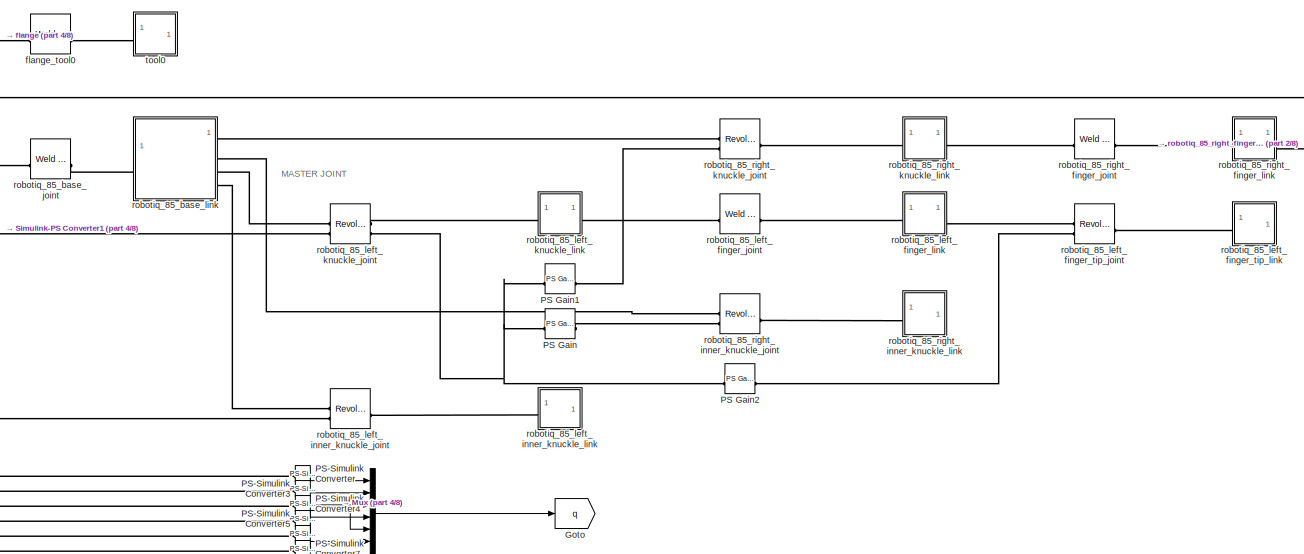
[diagram: root canvas - part 1/8, top right region]
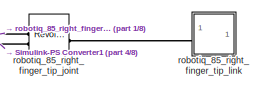
[diagram: root canvas - part 2/8, top right region]
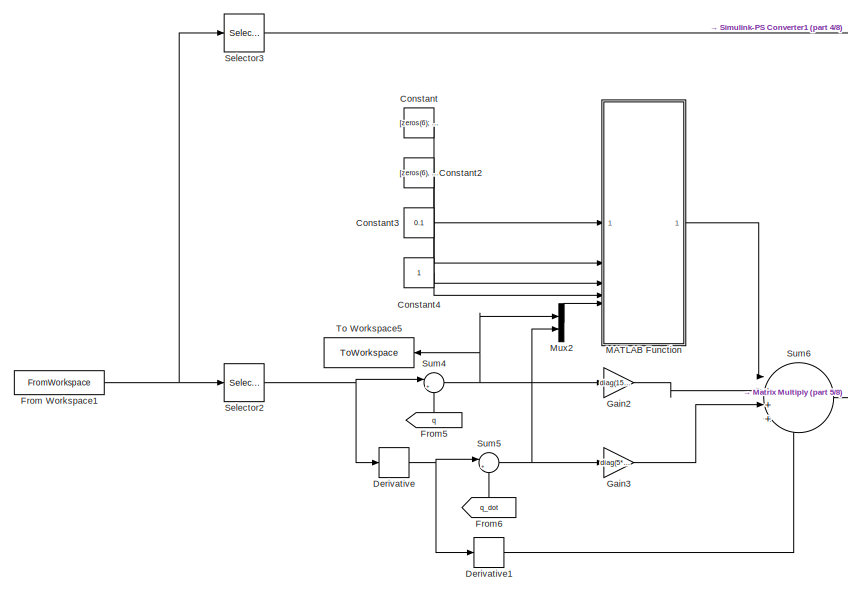
[diagram: root canvas - part 3/8, top left region]
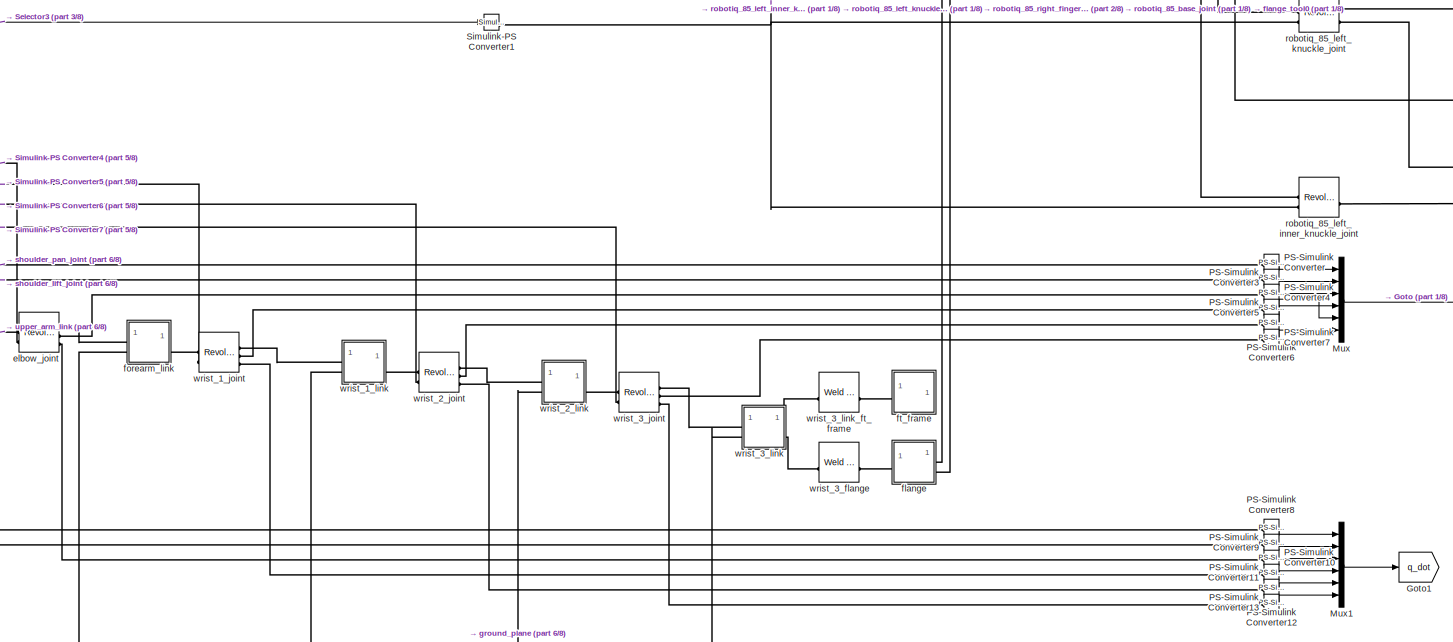
[diagram: root canvas - part 4/8, top right region]
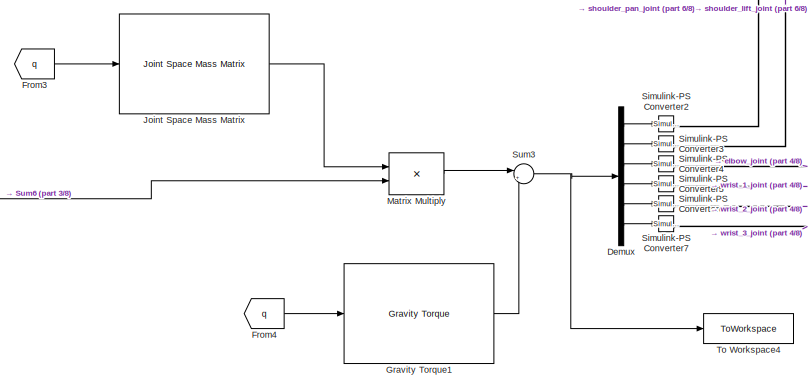
[diagram: root canvas - part 5/8, top left region]
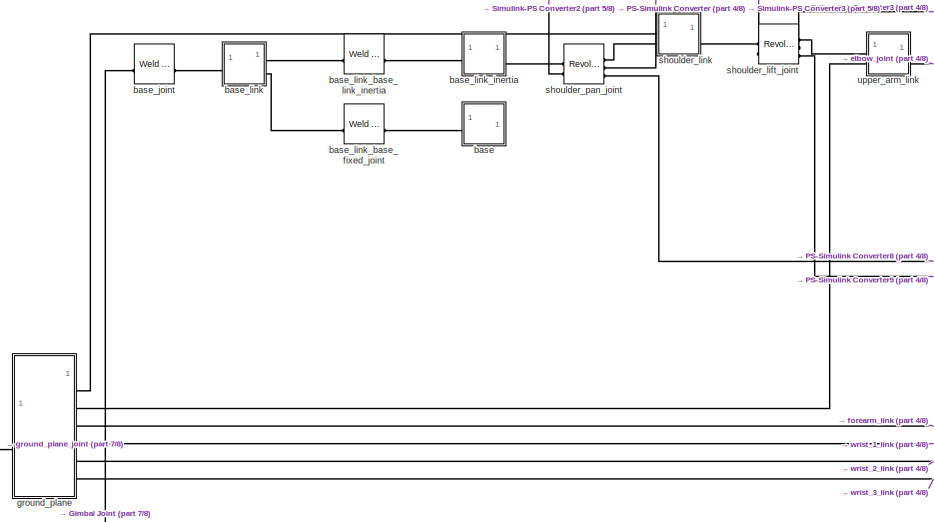
[diagram: root canvas - part 6/8, central region]
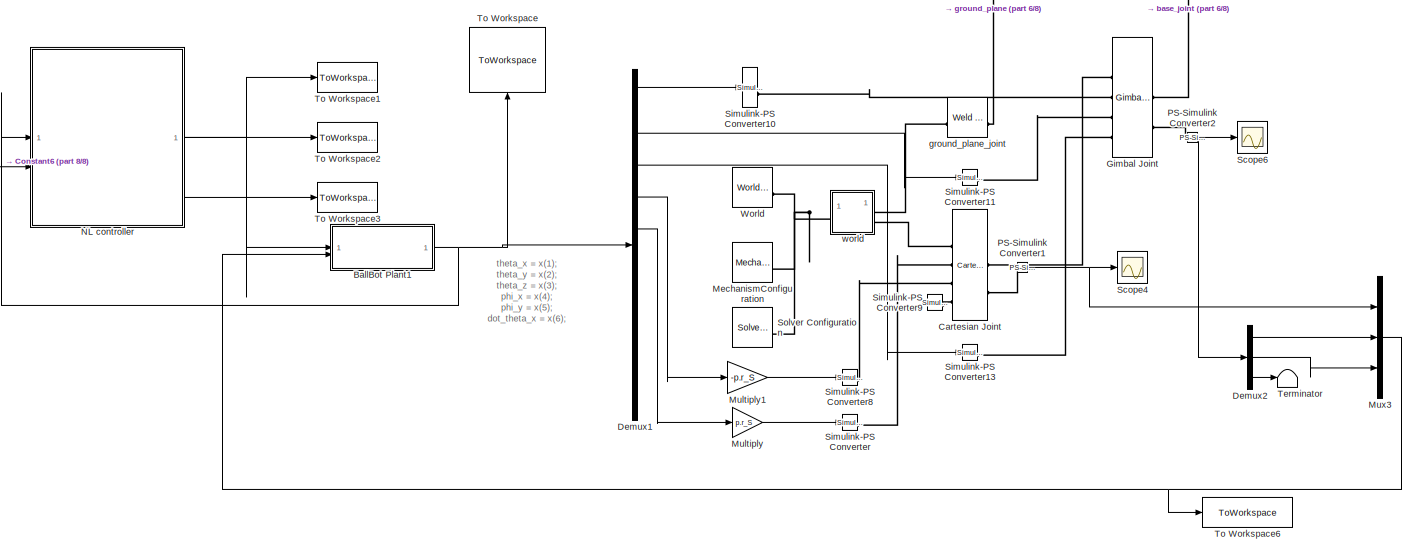
[diagram: root canvas - part 7/8, bottom left region]
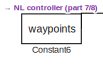
[diagram: root canvas - part 8/8, bottom left region]
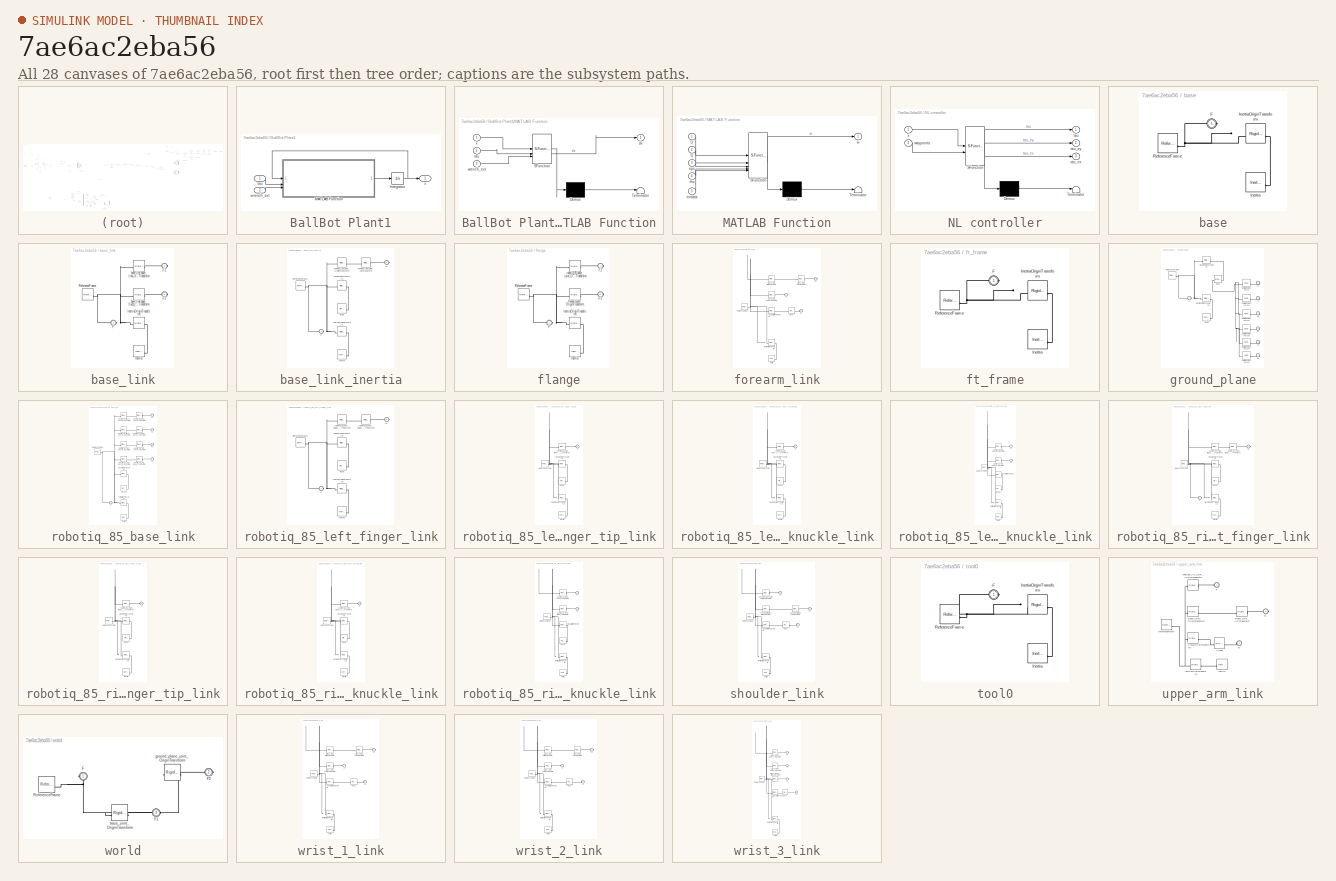
[diagram: thumbnail index - all 28 canvases of the model, root first then tree order]
MODEL slx_7ae6ac2eba56
KIND model
CONFIG AbsTol = auto
CONFIG EnableMultiTasking = off
CONFIG FixedStep = dt
CONFIG MaxStep = auto
CONFIG MinStep = auto
CONFIG RelTol = 1e-3
CONFIG SampleTimeConstraint = Unconstrained
CONFIG SolverName = ode3
CONFIG StartTime = 0.0
CONFIG StopTime = 40
BLOCK [SubSystem] BallBot Plant1
BLOCK [Integrator] BallBot Plant1/Integrator
  InitialCondition = x0(1:10)
BLOCK [SubSystem] BallBot Plant1/MATLAB Function
  ErrorFcn = Stateflow.Translate.translate
  PermitHierarchicalResolution = ExplicitOnly
  SFBlockType = MATLAB Function
  TreatAsAtomicUnit = on
BLOCK [Demux] BallBot Plant1/MATLAB Function/ Demux 
  Outputs = 1
BLOCK [S-Function] BallBot Plant1/MATLAB Function/ SFunction 
  EnableBusSupport = off
  FunctionName = sf_sfun
  Parameters = p
  PortCounts = [3 2]
  SFcnIsStateOwnerBlock = off
  SFunctionDeploymentMode = off
  Tag = Stateflow S-Function 4
BLOCK [Terminator] BallBot Plant1/MATLAB Function/ Terminator 
BLOCK [Outport] BallBot Plant1/MATLAB Function/dx
BLOCK [Inport] BallBot Plant1/MATLAB Function/tau
  Port = 2
BLOCK [Inport] BallBot Plant1/MATLAB Function/wrench_ext
  Port = 3
BLOCK [Inport] BallBot Plant1/MATLAB Function/x
BLOCK [Inport] BallBot Plant1/tau
BLOCK [Inport] BallBot Plant1/wrench_ext
  Port = 2
BLOCK [Outport] BallBot Plant1/x
BLOCK [Reference] Cartesian Joint  REF=sm_lib/Joints/Cartesian
Joint
  SourceBlock = sm_lib/Joints/Cartesian\nJoint
  SourceType = Cartesian\nJoint
BLOCK [Constant] Constant
  Value = [zeros(6); eye(6)]
BLOCK [Constant] Constant2
  Value = [zeros(6), 1000*eye(6); 1000*eye(6), 10*eye(6)];
BLOCK [Constant] Constant3
  Value = 0.1
BLOCK [Constant] Constant4
BLOCK [Constant] Constant6
  Value = waypoints
BLOCK [Demux] Demux
  Outputs = 6
BLOCK [Demux] Demux1
  Outputs = 10
BLOCK [Demux] Demux2
  Outputs = 3
BLOCK [Derivative] Derivative
BLOCK [Derivative] Derivative1
BLOCK [FromWorkspace] From Workspace1
  VariableName = simscape_trajectory
BLOCK [From] From3
  GotoTag = q
BLOCK [From] From4
  GotoTag = q
BLOCK [From] From5
  GotoTag = q
  NameLocation = right
BLOCK [From] From6
  GotoTag = q_dot
  NameLocation = right
BLOCK [Gain] Gain2
  Gain = diag(15*ones(1,6))
  Multiplication = Matrix(K*u)
BLOCK [Gain] Gain3
  Gain = diag(5*ones(1,6))
  Multiplication = Matrix(K*u)
BLOCK [Reference] Gimbal Joint  REF=sm_lib/Joints/Gimbal Joint
  SourceBlock = sm_lib/Joints/Gimbal Joint
  SourceType = Gimbal Joint
BLOCK [Goto] Goto
  GotoTag = q
BLOCK [Goto] Goto1
  GotoTag = q_dot
BLOCK [Reference] Gravity Torque1  REF=robotmaniplib/Gravity Torque
  SourceBlock = robotmaniplib/Gravity Torque
  SourceType = Gravity Torque
BLOCK [Reference] Joint Space Mass Matrix  REF=robotmaniplib/Joint Space Mass Matrix
  SourceBlock = robotmaniplib/Joint Space Mass Matrix
  SourceType = Joint Space Mass Matrix
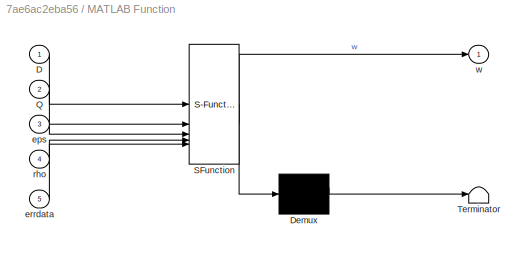
BLOCK [SubSystem] MATLAB Function
  ErrorFcn = Stateflow.Translate.translate
  PermitHierarchicalResolution = ExplicitOnly
  SFBlockType = MATLAB Function
  TreatAsAtomicUnit = on
BLOCK [Demux] MATLAB Function/ Demux 
  Outputs = 1
BLOCK [S-Function] MATLAB Function/ SFunction 
  EnableBusSupport = off
  FunctionName = sf_sfun
  PortCounts = [5 2]
  SFcnIsStateOwnerBlock = off
  SFunctionDeploymentMode = off
  Tag = Stateflow S-Function 2
BLOCK [Terminator] MATLAB Function/ Terminator 
BLOCK [Inport] MATLAB Function/D
BLOCK [Inport] MATLAB Function/Q
  Port = 2
BLOCK [Inport] MATLAB Function/eps
  Port = 3
BLOCK [Inport] MATLAB Function/errdata
  Port = 5
BLOCK [Inport] MATLAB Function/rho
  Port = 4
BLOCK [Outport] MATLAB Function/w
BLOCK [Product] Matrix Multiply
  Multiplication = Matrix(*)
BLOCK [Reference] MechanismConfiguration  REF=sm_lib/Utilities/Mechanism
Configuration
  SourceBlock = sm_lib/Utilities/Mechanism\nConfiguration
  SourceType = Mechanism\nConfiguration
BLOCK [Gain] Multiply
  Gain = p.r_S
BLOCK [Gain] Multiply1
  Gain = -p.r_S
BLOCK [Mux] Mux
  DisplayOption = bar
  Inputs = 6
BLOCK [Mux] Mux1
  DisplayOption = bar
  Inputs = 6
BLOCK [Mux] Mux2
  DisplayOption = bar
  Inputs = 2
BLOCK [Mux] Mux3
  DisplayOption = bar
  Inputs = 3
BLOCK [SubSystem] NL controller
  ErrorFcn = Stateflow.Translate.translate
  PermitHierarchicalResolution = ExplicitOnly
  SFBlockType = MATLAB Function
  TreatAsAtomicUnit = on
BLOCK [Demux] NL controller/ Demux 
  Outputs = 1
BLOCK [S-Function] NL controller/ SFunction 
  EnableBusSupport = off
  FunctionName = sf_sfun
  Parameters = control_params,dt,map_scale,p
  PortCounts = [2 4]
  SFcnIsStateOwnerBlock = off
  SFunctionDeploymentMode = off
  Tag = Stateflow S-Function 3
BLOCK [Terminator] NL controller/ Terminator 
BLOCK [Outport] NL controller/tau
BLOCK [Outport] NL controller/tau_ex
  Port = 3
BLOCK [Outport] NL controller/tau_ey
  Port = 2
BLOCK [Inport] NL controller/waypoints
  Port = 2
BLOCK [Inport] NL controller/x
BLOCK [Reference] PS Gain  REF=fl_lib/Physical Signals/Functions/PS Gain
  SourceBlock = fl_lib/Physical Signals/Functions/PS Gain
  SourceType = PS Gain
BLOCK [Reference] PS Gain1  REF=fl_lib/Physical Signals/Functions/PS Gain
  SourceBlock = fl_lib/Physical Signals/Functions/PS Gain
  SourceType = PS Gain
BLOCK [Reference] PS Gain2  REF=fl_lib/Physical Signals/Functions/PS Gain
  SourceBlock = fl_lib/Physical Signals/Functions/PS Gain
  SourceType = PS Gain
BLOCK [Reference] PS-Simulink Converter  REF=nesl_utility/PS-Simulink
Converter
  SourceBlock = nesl_utility/PS-Simulink\nConverter
  SourceType = PS-Simulink\nConverter
BLOCK [Reference] PS-Simulink Converter1  REF=nesl_utility/PS-Simulink
Converter
  SourceBlock = nesl_utility/PS-Simulink\nConverter
  SourceType = PS-Simulink\nConverter
BLOCK [Reference] PS-Simulink Converter10  REF=nesl_utility/PS-Simulink
Converter
  SourceBlock = nesl_utility/PS-Simulink\nConverter
  SourceType = PS-Simulink\nConverter
BLOCK [Reference] PS-Simulink Converter11  REF=nesl_utility/PS-Simulink
Converter
  SourceBlock = nesl_utility/PS-Simulink\nConverter
  SourceType = PS-Simulink\nConverter
BLOCK [Reference] PS-Simulink Converter12  REF=nesl_utility/PS-Simulink
Converter
  SourceBlock = nesl_utility/PS-Simulink\nConverter
  SourceType = PS-Simulink\nConverter
BLOCK [Reference] PS-Simulink Converter13  REF=nesl_utility/PS-Simulink
Converter
  SourceBlock = nesl_utility/PS-Simulink\nConverter
  SourceType = PS-Simulink\nConverter
BLOCK [Reference] PS-Simulink Converter2  REF=nesl_utility/PS-Simulink
Converter
  SourceBlock = nesl_utility/PS-Simulink\nConverter
  SourceType = PS-Simulink\nConverter
BLOCK [Reference] PS-Simulink Converter3  REF=nesl_utility/PS-Simulink
Converter
  SourceBlock = nesl_utility/PS-Simulink\nConverter
  SourceType = PS-Simulink\nConverter
BLOCK [Reference] PS-Simulink Converter4  REF=nesl_utility/PS-Simulink
Converter
  SourceBlock = nesl_utility/PS-Simulink\nConverter
  SourceType = PS-Simulink\nConverter
BLOCK [Reference] PS-Simulink Converter5  REF=nesl_utility/PS-Simulink
Converter
  SourceBlock = nesl_utility/PS-Simulink\nConverter
  SourceType = PS-Simulink\nConverter
BLOCK [Reference] PS-Simulink Converter6  REF=nesl_utility/PS-Simulink
Converter
  SourceBlock = nesl_utility/PS-Simulink\nConverter
  SourceType = PS-Simulink\nConverter
BLOCK [Reference] PS-Simulink Converter7  REF=nesl_utility/PS-Simulink
Converter
  SourceBlock = nesl_utility/PS-Simulink\nConverter
  SourceType = PS-Simulink\nConverter
BLOCK [Reference] PS-Simulink Converter8  REF=nesl_utility/PS-Simulink
Converter
  SourceBlock = nesl_utility/PS-Simulink\nConverter
  SourceType = PS-Simulink\nConverter
BLOCK [Reference] PS-Simulink Converter9  REF=nesl_utility/PS-Simulink
Converter
  SourceBlock = nesl_utility/PS-Simulink\nConverter
  SourceType = PS-Simulink\nConverter
BLOCK [Scope] Scope4
  ActiveDisplayYMaximum = 246.83615489840929
  ActiveDisplayYMinimum = -216.98568822569763
  DataLoggingVariableName = ScopeData19
  Floating = off
  GraphicalSettings = {"AxesScalingProperties":{"AlignXAxis":"Center","AlignYAxis":"Center","AutoScaleXAxisLimits":false,"AxesScaling":"Manual","AxesScalingNumUpdates":10,"ExpandOnly":true,"ScaleAxesLimitsAtStop":false,"XAxisDataRange":100,"YAxisDataRange":80},"DisplayProperties":{"ColorOrder":["auto","auto","auto","auto","auto","auto","auto","auto","auto","auto","auto","auto","auto","auto","auto","auto","auto","auto",...<+2338ch>
  MultipleDisplayCache = [{"MaxYLimMag":231.13030647194336,"MaxYLimReal":246.83615489840929,"MinYLimMag":0,"MinYLimReal":-216.98568822569763,"PlotAsMagnitudePhase":false,"ShowGrid":true,"ShowLegend":true,"Title":"%<SignalLabel>","YLabel":""}]
  NumInputPorts = 1
  ScopeFrameLocation = window
  ShowLegend = on
  WasSavedAsWebScope = on
  WindowPosition = [1299.000000,271.000000,560.000000,420.000000,]
BLOCK [Scope] Scope6
  ActiveDisplayYMaximum = 84.096812185900717
  ActiveDisplayYMinimum = -54.450907506249663
  DataLoggingVariableName = ScopeData21
  Floating = off
  GraphicalSettings = {"AxesScalingProperties":{"AlignXAxis":"Center","AlignYAxis":"Center","AutoScaleXAxisLimits":false,"AxesScaling":"Manual","AxesScalingNumUpdates":10,"ExpandOnly":true,"ScaleAxesLimitsAtStop":false,"XAxisDataRange":100,"YAxisDataRange":80},"DisplayProperties":{"ColorOrder":["auto","auto","auto","auto","auto","auto","auto","auto","auto","auto","auto","auto","auto","auto","auto","auto","auto","auto",...<+2340ch>
  MultipleDisplayCache = [{"MaxYLimMag":80.240506872841252,"MaxYLimReal":84.096812185900717,"MinYLimMag":0,"MinYLimReal":-54.450907506249663,"PlotAsMagnitudePhase":false,"ShowGrid":true,"ShowLegend":false,"Title":"%<SignalLabel>","YLabel":""}]
  NumInputPorts = 1
  ScopeFrameLocation = window
  WasSavedAsWebScope = on
  WindowPosition = [1243.000000,708.000000,560.000000,435.000000,]
BLOCK [Selector] Selector2
  IndexOptions = Index vector (dialog)
  Indices = [1 2 3 5 6 7]
  InputPortWidth = 7
  OutputSizes = 1
BLOCK [Selector] Selector3
  IndexOptions = Index vector (dialog)
  Indices = [4]
  InputPortWidth = 7
  OutputSizes = 1
BLOCK [Reference] Simulink-PS Converter  REF=nesl_utility/Simulink-PS
Converter
  SourceBlock = nesl_utility/Simulink-PS\nConverter
  SourceType = Simulink-PS\nConverter
BLOCK [Reference] Simulink-PS Converter1  REF=nesl_utility/Simulink-PS
Converter
  SourceBlock = nesl_utility/Simulink-PS\nConverter
  SourceType = Simulink-PS\nConverter
BLOCK [Reference] Simulink-PS Converter10  REF=nesl_utility/Simulink-PS
Converter
  SourceBlock = nesl_utility/Simulink-PS\nConverter
  SourceType = Simulink-PS\nConverter
BLOCK [Reference] Simulink-PS Converter11  REF=nesl_utility/Simulink-PS
Converter
  SourceBlock = nesl_utility/Simulink-PS\nConverter
  SourceType = Simulink-PS\nConverter
BLOCK [Reference] Simulink-PS Converter13  REF=nesl_utility/Simulink-PS
Converter
  SourceBlock = nesl_utility/Simulink-PS\nConverter
  SourceType = Simulink-PS\nConverter
BLOCK [Reference] Simulink-PS Converter2  REF=nesl_utility/Simulink-PS
Converter
  SourceBlock = nesl_utility/Simulink-PS\nConverter
  SourceType = Simulink-PS\nConverter
BLOCK [Reference] Simulink-PS Converter3  REF=nesl_utility/Simulink-PS
Converter
  SourceBlock = nesl_utility/Simulink-PS\nConverter
  SourceType = Simulink-PS\nConverter
BLOCK [Reference] Simulink-PS Converter4  REF=nesl_utility/Simulink-PS
Converter
  SourceBlock = nesl_utility/Simulink-PS\nConverter
  SourceType = Simulink-PS\nConverter
BLOCK [Reference] Simulink-PS Converter5  REF=nesl_utility/Simulink-PS
Converter
  SourceBlock = nesl_utility/Simulink-PS\nConverter
  SourceType = Simulink-PS\nConverter
BLOCK [Reference] Simulink-PS Converter6  REF=nesl_utility/Simulink-PS
Converter
  SourceBlock = nesl_utility/Simulink-PS\nConverter
  SourceType = Simulink-PS\nConverter
BLOCK [Reference] Simulink-PS Converter7  REF=nesl_utility/Simulink-PS
Converter
  SourceBlock = nesl_utility/Simulink-PS\nConverter
  SourceType = Simulink-PS\nConverter
BLOCK [Reference] Simulink-PS Converter8  REF=nesl_utility/Simulink-PS
Converter
  SourceBlock = nesl_utility/Simulink-PS\nConverter
  SourceType = Simulink-PS\nConverter
BLOCK [Reference] Simulink-PS Converter9  REF=nesl_utility/Simulink-PS
Converter
  SourceBlock = nesl_utility/Simulink-PS\nConverter
  SourceType = Simulink-PS\nConverter
BLOCK [Reference] Solver Configuration  REF=nesl_utility/Solver
Configuration
  SourceBlock = nesl_utility/Solver\nConfiguration
  SourceType = Solver\nConfiguration
BLOCK [Sum] Sum3
  Inputs = |++
BLOCK [Sum] Sum4
  Inputs = |+-
BLOCK [Sum] Sum5
  Inputs = |+-
BLOCK [Sum] Sum6
  Inputs = |++++
BLOCK [Terminator] Terminator
BLOCK [ToWorkspace] To Workspace
  FixptAsFi = on
  MaxDataPoints = inf
  NameLocation = right
  SampleTime = -1
  SaveFormat = Timeseries
  VariableName = x_sim
BLOCK [ToWorkspace] To Workspace1
  FixptAsFi = on
  MaxDataPoints = inf
  SampleTime = -1
  SaveFormat = Timeseries
  VariableName = tau_sim
BLOCK [ToWorkspace] To Workspace2
  FixptAsFi = on
  MaxDataPoints = inf
  SampleTime = -1
  SaveFormat = Timeseries
  VariableName = tauey_sim
BLOCK [ToWorkspace] To Workspace3
  FixptAsFi = on
  MaxDataPoints = inf
  SampleTime = -1
  SaveFormat = Timeseries
  VariableName = tauex_sim
BLOCK [ToWorkspace] To Workspace4
  FixptAsFi = on
  MaxDataPoints = inf
  SampleTime = -1
  SaveFormat = Timeseries
  VariableName = tau_manip
BLOCK [ToWorkspace] To Workspace5
  FixptAsFi = on
  MaxDataPoints = inf
  NameLocation = top
  SampleTime = -1
  SaveFormat = Timeseries
  VariableName = e_manip
BLOCK [ToWorkspace] To Workspace6
  FixptAsFi = on
  MaxDataPoints = inf
  SampleTime = -1
  SaveFormat = Timeseries
  VariableName = ex_wrench
BLOCK [Reference] World  REF=sm_lib/Frames and
Transforms/World Frame
  SourceBlock = sm_lib/Frames and\nTransforms/World Frame
  SourceType = World Frame
BLOCK [SubSystem] base
BLOCK [PMIOPort] base/F
  Side = Left
BLOCK [Reference] base/Inertia  REF=sm_lib/Body Elements/Inertia
  SourceBlock = sm_lib/Body Elements/Inertia
  SourceType = Inertia
BLOCK [Reference] base/InertiaOriginTransform  REF=sm_lib/Frames and
Transforms/Rigid
Transform
  SourceBlock = sm_lib/Frames and\nTransforms/Rigid\nTransform
  SourceType = Rigid\nTransform
BLOCK [Reference] base/ReferenceFrame  REF=sm_lib/Frames and
Transforms/Reference
Frame
  SourceBlock = sm_lib/Frames and\nTransforms/Reference\nFrame
  SourceType = Reference\nFrame
BLOCK [Reference] base_joint  REF=sm_lib/Joints/Weld Joint
  SourceBlock = sm_lib/Joints/Weld Joint
  SourceType = Weld Joint
BLOCK [SubSystem] base_link
BLOCK [PMIOPort] base_link/F
  Side = Left
BLOCK [PMIOPort] base_link/F1
  Port = 3
  Side = Right
BLOCK [PMIOPort] base_link/F2
  Port = 2
  Side = Right
BLOCK [Reference] base_link/Inertia  REF=sm_lib/Body Elements/Inertia
  SourceBlock = sm_lib/Body Elements/Inertia
  SourceType = Inertia
BLOCK [Reference] base_link/InertiaOriginTransform  REF=sm_lib/Frames and
Transforms/Rigid
Transform
  SourceBlock = sm_lib/Frames and\nTransforms/Rigid\nTransform
  SourceType = Rigid\nTransform
BLOCK [Reference] base_link/ReferenceFrame  REF=sm_lib/Frames and
Transforms/Reference
Frame
  SourceBlock = sm_lib/Frames and\nTransforms/Reference\nFrame
  SourceType = Reference\nFrame
BLOCK [Reference] base_link/base_link_base_fixed_joint_OriginTransform  REF=sm_lib/Frames and
Transforms/Rigid
Transform
  SourceBlock = sm_lib/Frames and\nTransforms/Rigid\nTransform
  SourceType = Rigid\nTransform
BLOCK [Reference] base_link/base_link_base_link_inertia_OriginTransform  REF=sm_lib/Frames and
Transforms/Rigid
Transform
  SourceBlock = sm_lib/Frames and\nTransforms/Rigid\nTransform
  SourceType = Rigid\nTransform
BLOCK [Reference] base_link_base_fixed_joint  REF=sm_lib/Joints/Weld Joint
  SourceBlock = sm_lib/Joints/Weld Joint
  SourceType = Weld Joint
BLOCK [Reference] base_link_base_link_inertia  REF=sm_lib/Joints/Weld Joint
  SourceBlock = sm_lib/Joints/Weld Joint
  SourceType = Weld Joint
BLOCK [SubSystem] base_link_inertia
BLOCK [PMIOPort] base_link_inertia/F
  Side = Left
BLOCK [PMIOPort] base_link_inertia/F1
  Port = 2
  Side = Right
BLOCK [Reference] base_link_inertia/Inertia  REF=sm_lib/Body Elements/Inertia
  SourceBlock = sm_lib/Body Elements/Inertia
  SourceType = Inertia
BLOCK [Reference] base_link_inertia/InertiaOriginTransform  REF=sm_lib/Frames and
Transforms/Rigid
Transform
  SourceBlock = sm_lib/Frames and\nTransforms/Rigid\nTransform
  SourceType = Rigid\nTransform
BLOCK [Reference] base_link_inertia/ReferenceFrame  REF=sm_lib/Frames and
Transforms/Reference
Frame
  SourceBlock = sm_lib/Frames and\nTransforms/Reference\nFrame
  SourceType = Reference\nFrame
BLOCK [Reference] base_link_inertia/Visual  REF=sm_lib/Body Elements/File Solid
  SourceBlock = sm_lib/Body Elements/File Solid
  SourceType = File Solid
BLOCK [Reference] base_link_inertia/VisualOriginTransform  REF=sm_lib/Frames and
Transforms/Rigid
Transform
  SourceBlock = sm_lib/Frames and\nTransforms/Rigid\nTransform
  SourceType = Rigid\nTransform
BLOCK [Reference] base_link_inertia/shoulder_pan_joint_AxisTransform  REF=sm_lib/Frames and
Transforms/Rigid
Transform
  SourceBlock = sm_lib/Frames and\nTransforms/Rigid\nTransform
  SourceType = Rigid\nTransform
BLOCK [Reference] base_link_inertia/shoulder_pan_joint_OriginTransform  REF=sm_lib/Frames and
Transforms/Rigid
Transform
  SourceBlock = sm_lib/Frames and\nTransforms/Rigid\nTransform
  SourceType = Rigid\nTransform
BLOCK [Reference] elbow_joint  REF=sm_lib/Joints/Revolute Joint
  SourceBlock = sm_lib/Joints/Revolute Joint
  SourceType = Revolute Joint
BLOCK [SubSystem] flange
BLOCK [PMIOPort] flange/F
  Side = Left
BLOCK [PMIOPort] flange/F1
  Port = 3
  Side = Right
BLOCK [PMIOPort] flange/F2
  Port = 2
  Side = Right
BLOCK [Reference] flange/Inertia  REF=sm_lib/Body Elements/Inertia
  SourceBlock = sm_lib/Body Elements/Inertia
  SourceType = Inertia
BLOCK [Reference] flange/InertiaOriginTransform  REF=sm_lib/Frames and
Transforms/Rigid
Transform
  SourceBlock = sm_lib/Frames and\nTransforms/Rigid\nTransform
  SourceType = Rigid\nTransform
BLOCK [Reference] flange/ReferenceFrame  REF=sm_lib/Frames and
Transforms/Reference
Frame
  SourceBlock = sm_lib/Frames and\nTransforms/Reference\nFrame
  SourceType = Reference\nFrame
BLOCK [Reference] flange/flange_tool0_OriginTransform  REF=sm_lib/Frames and
Transforms/Rigid
Transform
  SourceBlock = sm_lib/Frames and\nTransforms/Rigid\nTransform
  SourceType = Rigid\nTransform
BLOCK [Reference] flange/robotiq_85_base_joint_OriginTransform  REF=sm_lib/Frames and
Transforms/Rigid
Transform
  SourceBlock = sm_lib/Frames and\nTransforms/Rigid\nTransform
  SourceType = Rigid\nTransform
BLOCK [Reference] flange_tool0  REF=sm_lib/Joints/Weld Joint
  SourceBlock = sm_lib/Joints/Weld Joint
  SourceType = Weld Joint
BLOCK [SubSystem] forearm_link
BLOCK [PMIOPort] forearm_link/F
  Side = Left
BLOCK [PMIOPort] forearm_link/F1
  Port = 2
  Side = Right
BLOCK [PMIOPort] forearm_link/F2
  Port = 3
  Side = Left
BLOCK [Reference] forearm_link/Inertia  REF=sm_lib/Body Elements/Inertia
  SourceBlock = sm_lib/Body Elements/Inertia
  SourceType = Inertia
BLOCK [Reference] forearm_link/InertiaOriginTransform  REF=sm_lib/Frames and
Transforms/Rigid
Transform
  SourceBlock = sm_lib/Frames and\nTransforms/Rigid\nTransform
  SourceType = Rigid\nTransform
BLOCK [Reference] forearm_link/ReferenceFrame  REF=sm_lib/Frames and
Transforms/Reference
Frame
  SourceBlock = sm_lib/Frames and\nTransforms/Reference\nFrame
  SourceType = Reference\nFrame
BLOCK [Reference] forearm_link/Visual  REF=sm_lib/Body Elements/File Solid
  NameLocation = top
  SourceBlock = sm_lib/Body Elements/File Solid
  SourceType = File Solid
BLOCK [Reference] forearm_link/VisualOriginTransform  REF=sm_lib/Frames and
Transforms/Rigid
Transform
  SourceBlock = sm_lib/Frames and\nTransforms/Rigid\nTransform
  SourceType = Rigid\nTransform
BLOCK [Reference] forearm_link/elbow_joint_AxisInvTransform  REF=sm_lib/Frames and
Transforms/Rigid
Transform
  SourceBlock = sm_lib/Frames and\nTransforms/Rigid\nTransform
  SourceType = Rigid\nTransform
BLOCK [Reference] forearm_link/wrist_1_joint_AxisTransform  REF=sm_lib/Frames and
Transforms/Rigid
Transform
  SourceBlock = sm_lib/Frames and\nTransforms/Rigid\nTransform
  SourceType = Rigid\nTransform
BLOCK [Reference] forearm_link/wrist_1_joint_OriginTransform  REF=sm_lib/Frames and
Transforms/Rigid
Transform
  SourceBlock = sm_lib/Frames and\nTransforms/Rigid\nTransform
  SourceType = Rigid\nTransform
BLOCK [SubSystem] ft_frame
BLOCK [PMIOPort] ft_frame/F
  Side = Left
BLOCK [Reference] ft_frame/Inertia  REF=sm_lib/Body Elements/Inertia
  SourceBlock = sm_lib/Body Elements/Inertia
  SourceType = Inertia
BLOCK [Reference] ft_frame/InertiaOriginTransform  REF=sm_lib/Frames and
Transforms/Rigid
Transform
  SourceBlock = sm_lib/Frames and\nTransforms/Rigid\nTransform
  SourceType = Rigid\nTransform
BLOCK [Reference] ft_frame/ReferenceFrame  REF=sm_lib/Frames and
Transforms/Reference
Frame
  SourceBlock = sm_lib/Frames and\nTransforms/Reference\nFrame
  SourceType = Reference\nFrame
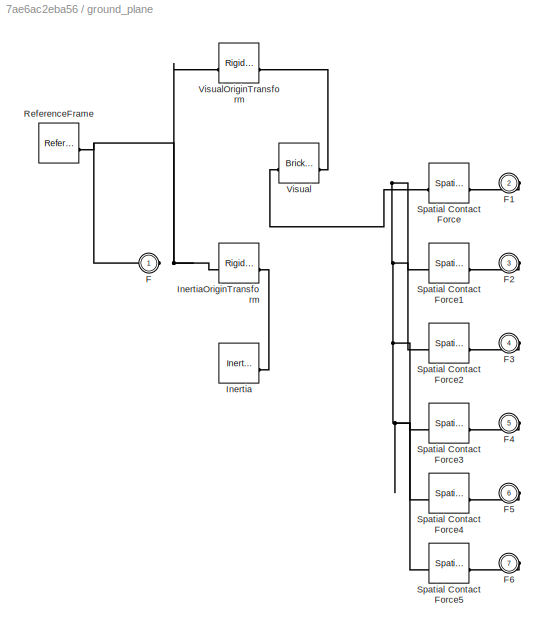
BLOCK [SubSystem] ground_plane
BLOCK [PMIOPort] ground_plane/F
  Side = Left
BLOCK [PMIOPort] ground_plane/F1
  NameLocation = top
  Port = 2
  Side = Right
BLOCK [PMIOPort] ground_plane/F2
  NameLocation = top
  Port = 3
  Side = Right
BLOCK [PMIOPort] ground_plane/F3
  NameLocation = top
  Port = 4
  Side = Right
BLOCK [PMIOPort] ground_plane/F4
  NameLocation = top
  Port = 5
  Side = Right
BLOCK [PMIOPort] ground_plane/F5
  NameLocation = top
  Port = 6
  Side = Right
BLOCK [PMIOPort] ground_plane/F6
  NameLocation = top
  Port = 7
  Side = Right
BLOCK [Reference] ground_plane/Inertia  REF=sm_lib/Body Elements/Inertia
  SourceBlock = sm_lib/Body Elements/Inertia
  SourceType = Inertia
BLOCK [Reference] ground_plane/InertiaOriginTransform  REF=sm_lib/Frames and
Transforms/Rigid
Transform
  SourceBlock = sm_lib/Frames and\nTransforms/Rigid\nTransform
  SourceType = Rigid\nTransform
BLOCK [Reference] ground_plane/ReferenceFrame  REF=sm_lib/Frames and
Transforms/Reference
Frame
  SourceBlock = sm_lib/Frames and\nTransforms/Reference\nFrame
  SourceType = Reference\nFrame
BLOCK [Reference] ground_plane/Spatial Contact Force  REF=sm_lib/Forces and
Torques/Spatial
Contact Force
  SourceBlock = sm_lib/Forces and\nTorques/Spatial\nContact Force
  SourceType = Spatial\nContact Force
BLOCK [Reference] ground_plane/Spatial Contact Force1  REF=sm_lib/Forces and
Torques/Spatial
Contact Force
  SourceBlock = sm_lib/Forces and\nTorques/Spatial\nContact Force
  SourceType = Spatial\nContact Force
BLOCK [Reference] ground_plane/Spatial Contact Force2  REF=sm_lib/Forces and
Torques/Spatial
Contact Force
  SourceBlock = sm_lib/Forces and\nTorques/Spatial\nContact Force
  SourceType = Spatial\nContact Force
BLOCK [Reference] ground_plane/Spatial Contact Force3  REF=sm_lib/Forces and
Torques/Spatial
Contact Force
  SourceBlock = sm_lib/Forces and\nTorques/Spatial\nContact Force
  SourceType = Spatial\nContact Force
BLOCK [Reference] ground_plane/Spatial Contact Force4  REF=sm_lib/Forces and
Torques/Spatial
Contact Force
  SourceBlock = sm_lib/Forces and\nTorques/Spatial\nContact Force
  SourceType = Spatial\nContact Force
BLOCK [Reference] ground_plane/Spatial Contact Force5  REF=sm_lib/Forces and
Torques/Spatial
Contact Force
  SourceBlock = sm_lib/Forces and\nTorques/Spatial\nContact Force
  SourceType = Spatial\nContact Force
BLOCK [Reference] ground_plane/Visual  REF=sm_lib/Body Elements/Brick Solid
  SourceBlock = sm_lib/Body Elements/Brick Solid
  SourceType = Brick Solid
BLOCK [Reference] ground_plane/VisualOriginTransform  REF=sm_lib/Frames and
Transforms/Rigid
Transform
  SourceBlock = sm_lib/Frames and\nTransforms/Rigid\nTransform
  SourceType = Rigid\nTransform
BLOCK [Reference] ground_plane_joint  REF=sm_lib/Joints/Weld Joint
  SourceBlock = sm_lib/Joints/Weld Joint
  SourceType = Weld Joint
BLOCK [Reference] robotiq_85_base_joint  REF=sm_lib/Joints/Weld Joint
  SourceBlock = sm_lib/Joints/Weld Joint
  SourceType = Weld Joint
BLOCK [SubSystem] robotiq_85_base_link
BLOCK [PMIOPort] robotiq_85_base_link/F
  Side = Left
BLOCK [PMIOPort] robotiq_85_base_link/F1
  Port = 5
  Side = Right
BLOCK [PMIOPort] robotiq_85_base_link/F2
  Port = 4
  Side = Right
BLOCK [PMIOPort] robotiq_85_base_link/F3
  Port = 3
  Side = Right
BLOCK [PMIOPort] robotiq_85_base_link/F4
  Port = 2
  Side = Right
BLOCK [Reference] robotiq_85_base_link/Inertia  REF=sm_lib/Body Elements/Inertia
  SourceBlock = sm_lib/Body Elements/Inertia
  SourceType = Inertia
BLOCK [Reference] robotiq_85_base_link/InertiaOriginTransform  REF=sm_lib/Frames and
Transforms/Rigid
Transform
  SourceBlock = sm_lib/Frames and\nTransforms/Rigid\nTransform
  SourceType = Rigid\nTransform
BLOCK [Reference] robotiq_85_base_link/ReferenceFrame  REF=sm_lib/Frames and
Transforms/Reference
Frame
  SourceBlock = sm_lib/Frames and\nTransforms/Reference\nFrame
  SourceType = Reference\nFrame
BLOCK [Reference] robotiq_85_base_link/Visual  REF=sm_lib/Body Elements/File Solid
  SourceBlock = sm_lib/Body Elements/File Solid
  SourceType = File Solid
BLOCK [Reference] robotiq_85_base_link/VisualOriginTransform  REF=sm_lib/Frames and
Transforms/Rigid
Transform
  SourceBlock = sm_lib/Frames and\nTransforms/Rigid\nTransform
  SourceType = Rigid\nTransform
BLOCK [Reference] robotiq_85_base_link/robotiq_85_left_inner_knuckle_joint_AxisTransform  REF=sm_lib/Frames and
Transforms/Rigid
Transform
  SourceBlock = sm_lib/Frames and\nTransforms/Rigid\nTransform
  SourceType = Rigid\nTransform
BLOCK [Reference] robotiq_85_base_link/robotiq_85_left_inner_knuckle_joint_OriginTransform  REF=sm_lib/Frames and
Transforms/Rigid
Transform
  SourceBlock = sm_lib/Frames and\nTransforms/Rigid\nTransform
  SourceType = Rigid\nTransform
BLOCK [Reference] robotiq_85_base_link/robotiq_85_left_knuckle_joint_AxisTransform  REF=sm_lib/Frames and
Transforms/Rigid
Transform
  SourceBlock = sm_lib/Frames and\nTransforms/Rigid\nTransform
  SourceType = Rigid\nTransform
BLOCK [Reference] robotiq_85_base_link/robotiq_85_left_knuckle_joint_OriginTransform  REF=sm_lib/Frames and
Transforms/Rigid
Transform
  SourceBlock = sm_lib/Frames and\nTransforms/Rigid\nTransform
  SourceType = Rigid\nTransform
BLOCK [Reference] robotiq_85_base_link/robotiq_85_right_inner_knuckle_joint_AxisTransform  REF=sm_lib/Frames and
Transforms/Rigid
Transform
  SourceBlock = sm_lib/Frames and\nTransforms/Rigid\nTransform
  SourceType = Rigid\nTransform
BLOCK [Reference] robotiq_85_base_link/robotiq_85_right_inner_knuckle_joint_OriginTransform  REF=sm_lib/Frames and
Transforms/Rigid
Transform
  SourceBlock = sm_lib/Frames and\nTransforms/Rigid\nTransform
  SourceType = Rigid\nTransform
BLOCK [Reference] robotiq_85_base_link/robotiq_85_right_knuckle_joint_AxisTransform  REF=sm_lib/Frames and
Transforms/Rigid
Transform
  SourceBlock = sm_lib/Frames and\nTransforms/Rigid\nTransform
  SourceType = Rigid\nTransform
BLOCK [Reference] robotiq_85_base_link/robotiq_85_right_knuckle_joint_OriginTransform  REF=sm_lib/Frames and
Transforms/Rigid
Transform
  SourceBlock = sm_lib/Frames and\nTransforms/Rigid\nTransform
  SourceType = Rigid\nTransform
BLOCK [Reference] robotiq_85_left_finger_joint  REF=sm_lib/Joints/Weld Joint
  SourceBlock = sm_lib/Joints/Weld Joint
  SourceType = Weld Joint
BLOCK [SubSystem] robotiq_85_left_finger_link
BLOCK [PMIOPort] robotiq_85_left_finger_link/F
  Side = Left
BLOCK [PMIOPort] robotiq_85_left_finger_link/F1
  Port = 2
  Side = Right
BLOCK [Reference] robotiq_85_left_finger_link/Inertia  REF=sm_lib/Body Elements/Inertia
  SourceBlock = sm_lib/Body Elements/Inertia
  SourceType = Inertia
BLOCK [Reference] robotiq_85_left_finger_link/InertiaOriginTransform  REF=sm_lib/Frames and
Transforms/Rigid
Transform
  SourceBlock = sm_lib/Frames and\nTransforms/Rigid\nTransform
  SourceType = Rigid\nTransform
BLOCK [Reference] robotiq_85_left_finger_link/ReferenceFrame  REF=sm_lib/Frames and
Transforms/Reference
Frame
  SourceBlock = sm_lib/Frames and\nTransforms/Reference\nFrame
  SourceType = Reference\nFrame
BLOCK [Reference] robotiq_85_left_finger_link/Visual  REF=sm_lib/Body Elements/File Solid
  SourceBlock = sm_lib/Body Elements/File Solid
  SourceType = File Solid
BLOCK [Reference] robotiq_85_left_finger_link/VisualOriginTransform  REF=sm_lib/Frames and
Transforms/Rigid
Transform
  SourceBlock = sm_lib/Frames and\nTransforms/Rigid\nTransform
  SourceType = Rigid\nTransform
BLOCK [Reference] robotiq_85_left_finger_link/robotiq_85_left_finger_tip_joint_AxisTransform  REF=sm_lib/Frames and
Transforms/Rigid
Transform
  SourceBlock = sm_lib/Frames and\nTransforms/Rigid\nTransform
  SourceType = Rigid\nTransform
BLOCK [Reference] robotiq_85_left_finger_link/robotiq_85_left_finger_tip_joint_OriginTransform  REF=sm_lib/Frames and
Transforms/Rigid
Transform
  SourceBlock = sm_lib/Frames and\nTransforms/Rigid\nTransform
  SourceType = Rigid\nTransform
BLOCK [Reference] robotiq_85_left_finger_tip_joint  REF=sm_lib/Joints/Revolute Joint
  SourceBlock = sm_lib/Joints/Revolute Joint
  SourceType = Revolute Joint
BLOCK [SubSystem] robotiq_85_left_finger_tip_link
BLOCK [PMIOPort] robotiq_85_left_finger_tip_link/F
  Side = Left
BLOCK [Reference] robotiq_85_left_finger_tip_link/Inertia  REF=sm_lib/Body Elements/Inertia
  SourceBlock = sm_lib/Body Elements/Inertia
  SourceType = Inertia
BLOCK [Reference] robotiq_85_left_finger_tip_link/InertiaOriginTransform  REF=sm_lib/Frames and
Transforms/Rigid
Transform
  SourceBlock = sm_lib/Frames and\nTransforms/Rigid\nTransform
  SourceType = Rigid\nTransform
BLOCK [Reference] robotiq_85_left_finger_tip_link/ReferenceFrame  REF=sm_lib/Frames and
Transforms/Reference
Frame
  SourceBlock = sm_lib/Frames and\nTransforms/Reference\nFrame
  SourceType = Reference\nFrame
BLOCK [Reference] robotiq_85_left_finger_tip_link/Visual  REF=sm_lib/Body Elements/File Solid
  SourceBlock = sm_lib/Body Elements/File Solid
  SourceType = File Solid
BLOCK [Reference] robotiq_85_left_finger_tip_link/VisualOriginTransform  REF=sm_lib/Frames and
Transforms/Rigid
Transform
  SourceBlock = sm_lib/Frames and\nTransforms/Rigid\nTransform
  SourceType = Rigid\nTransform
BLOCK [Reference] robotiq_85_left_finger_tip_link/robotiq_85_left_finger_tip_joint_AxisInvTransform  REF=sm_lib/Frames and
Transforms/Rigid
Transform
  SourceBlock = sm_lib/Frames and\nTransforms/Rigid\nTransform
  SourceType = Rigid\nTransform
BLOCK [Reference] robotiq_85_left_inner_knuckle_joint  REF=sm_lib/Joints/Revolute Joint
  SourceBlock = sm_lib/Joints/Revolute Joint
  SourceType = Revolute Joint
BLOCK [SubSystem] robotiq_85_left_inner_knuckle_link
BLOCK [PMIOPort] robotiq_85_left_inner_knuckle_link/F
  Side = Left
BLOCK [Reference] robotiq_85_left_inner_knuckle_link/Inertia  REF=sm_lib/Body Elements/Inertia
  SourceBlock = sm_lib/Body Elements/Inertia
  SourceType = Inertia
BLOCK [Reference] robotiq_85_left_inner_knuckle_link/InertiaOriginTransform  REF=sm_lib/Frames and
Transforms/Rigid
Transform
  SourceBlock = sm_lib/Frames and\nTransforms/Rigid\nTransform
  SourceType = Rigid\nTransform
BLOCK [Reference] robotiq_85_left_inner_knuckle_link/ReferenceFrame  REF=sm_lib/Frames and
Transforms/Reference
Frame
  SourceBlock = sm_lib/Frames and\nTransforms/Reference\nFrame
  SourceType = Reference\nFrame
BLOCK [Reference] robotiq_85_left_inner_knuckle_link/Visual  REF=sm_lib/Body Elements/File Solid
  SourceBlock = sm_lib/Body Elements/File Solid
  SourceType = File Solid
BLOCK [Reference] robotiq_85_left_inner_knuckle_link/VisualOriginTransform  REF=sm_lib/Frames and
Transforms/Rigid
Transform
  SourceBlock = sm_lib/Frames and\nTransforms/Rigid\nTransform
  SourceType = Rigid\nTransform
BLOCK [Reference] robotiq_85_left_inner_knuckle_link/robotiq_85_left_inner_knuckle_joint_AxisInvTransform  REF=sm_lib/Frames and
Transforms/Rigid
Transform
  SourceBlock = sm_lib/Frames and\nTransforms/Rigid\nTransform
  SourceType = Rigid\nTransform
BLOCK [Reference] robotiq_85_left_knuckle_joint  REF=sm_lib/Joints/Revolute Joint
  SourceBlock = sm_lib/Joints/Revolute Joint
  SourceType = Revolute Joint
BLOCK [SubSystem] robotiq_85_left_knuckle_link
BLOCK [PMIOPort] robotiq_85_left_knuckle_link/F
  Side = Left
BLOCK [PMIOPort] robotiq_85_left_knuckle_link/F1
  Port = 2
  Side = Right
BLOCK [Reference] robotiq_85_left_knuckle_link/Inertia  REF=sm_lib/Body Elements/Inertia
  SourceBlock = sm_lib/Body Elements/Inertia
  SourceType = Inertia
BLOCK [Reference] robotiq_85_left_knuckle_link/InertiaOriginTransform  REF=sm_lib/Frames and
Transforms/Rigid
Transform
  SourceBlock = sm_lib/Frames and\nTransforms/Rigid\nTransform
  SourceType = Rigid\nTransform
BLOCK [Reference] robotiq_85_left_knuckle_link/ReferenceFrame  REF=sm_lib/Frames and
Transforms/Reference
Frame
  SourceBlock = sm_lib/Frames and\nTransforms/Reference\nFrame
  SourceType = Reference\nFrame
BLOCK [Reference] robotiq_85_left_knuckle_link/Visual  REF=sm_lib/Body Elements/File Solid
  SourceBlock = sm_lib/Body Elements/File Solid
  SourceType = File Solid
BLOCK [Reference] robotiq_85_left_knuckle_link/VisualOriginTransform  REF=sm_lib/Frames and
Transforms/Rigid
Transform
  SourceBlock = sm_lib/Frames and\nTransforms/Rigid\nTransform
  SourceType = Rigid\nTransform
BLOCK [Reference] robotiq_85_left_knuckle_link/robotiq_85_left_finger_joint_OriginTransform  REF=sm_lib/Frames and
Transforms/Rigid
Transform
  SourceBlock = sm_lib/Frames and\nTransforms/Rigid\nTransform
  SourceType = Rigid\nTransform
BLOCK [Reference] robotiq_85_left_knuckle_link/robotiq_85_left_knuckle_joint_AxisInvTransform  REF=sm_lib/Frames and
Transforms/Rigid
Transform
  SourceBlock = sm_lib/Frames and\nTransforms/Rigid\nTransform
  SourceType = Rigid\nTransform
BLOCK [Reference] robotiq_85_right_finger_joint  REF=sm_lib/Joints/Weld Joint
  SourceBlock = sm_lib/Joints/Weld Joint
  SourceType = Weld Joint
BLOCK [SubSystem] robotiq_85_right_finger_link
BLOCK [PMIOPort] robotiq_85_right_finger_link/F
  Side = Left
BLOCK [PMIOPort] robotiq_85_right_finger_link/F1
  Port = 2
  Side = Right
BLOCK [Reference] robotiq_85_right_finger_link/Inertia  REF=sm_lib/Body Elements/Inertia
  SourceBlock = sm_lib/Body Elements/Inertia
  SourceType = Inertia
BLOCK [Reference] robotiq_85_right_finger_link/InertiaOriginTransform  REF=sm_lib/Frames and
Transforms/Rigid
Transform
  SourceBlock = sm_lib/Frames and\nTransforms/Rigid\nTransform
  SourceType = Rigid\nTransform
BLOCK [Reference] robotiq_85_right_finger_link/ReferenceFrame  REF=sm_lib/Frames and
Transforms/Reference
Frame
  SourceBlock = sm_lib/Frames and\nTransforms/Reference\nFrame
  SourceType = Reference\nFrame
BLOCK [Reference] robotiq_85_right_finger_link/Visual  REF=sm_lib/Body Elements/File Solid
  SourceBlock = sm_lib/Body Elements/File Solid
  SourceType = File Solid
BLOCK [Reference] robotiq_85_right_finger_link/VisualOriginTransform  REF=sm_lib/Frames and
Transforms/Rigid
Transform
  SourceBlock = sm_lib/Frames and\nTransforms/Rigid\nTransform
  SourceType = Rigid\nTransform
BLOCK [Reference] robotiq_85_right_finger_link/robotiq_85_right_finger_tip_joint_AxisTransform  REF=sm_lib/Frames and
Transforms/Rigid
Transform
  SourceBlock = sm_lib/Frames and\nTransforms/Rigid\nTransform
  SourceType = Rigid\nTransform
BLOCK [Reference] robotiq_85_right_finger_link/robotiq_85_right_finger_tip_joint_OriginTransform  REF=sm_lib/Frames and
Transforms/Rigid
Transform
  SourceBlock = sm_lib/Frames and\nTransforms/Rigid\nTransform
  SourceType = Rigid\nTransform
BLOCK [Reference] robotiq_85_right_finger_tip_joint  REF=sm_lib/Joints/Revolute Joint
  SourceBlock = sm_lib/Joints/Revolute Joint
  SourceType = Revolute Joint
BLOCK [SubSystem] robotiq_85_right_finger_tip_link
BLOCK [PMIOPort] robotiq_85_right_finger_tip_link/F
  Side = Left
BLOCK [Reference] robotiq_85_right_finger_tip_link/Inertia  REF=sm_lib/Body Elements/Inertia
  SourceBlock = sm_lib/Body Elements/Inertia
  SourceType = Inertia
BLOCK [Reference] robotiq_85_right_finger_tip_link/InertiaOriginTransform  REF=sm_lib/Frames and
Transforms/Rigid
Transform
  SourceBlock = sm_lib/Frames and\nTransforms/Rigid\nTransform
  SourceType = Rigid\nTransform
BLOCK [Reference] robotiq_85_right_finger_tip_link/ReferenceFrame  REF=sm_lib/Frames and
Transforms/Reference
Frame
  SourceBlock = sm_lib/Frames and\nTransforms/Reference\nFrame
  SourceType = Reference\nFrame
BLOCK [Reference] robotiq_85_right_finger_tip_link/Visual  REF=sm_lib/Body Elements/File Solid
  SourceBlock = sm_lib/Body Elements/File Solid
  SourceType = File Solid
BLOCK [Reference] robotiq_85_right_finger_tip_link/VisualOriginTransform  REF=sm_lib/Frames and
Transforms/Rigid
Transform
  SourceBlock = sm_lib/Frames and\nTransforms/Rigid\nTransform
  SourceType = Rigid\nTransform
BLOCK [Reference] robotiq_85_right_finger_tip_link/robotiq_85_right_finger_tip_joint_AxisInvTransform  REF=sm_lib/Frames and
Transforms/Rigid
Transform
  SourceBlock = sm_lib/Frames and\nTransforms/Rigid\nTransform
  SourceType = Rigid\nTransform
BLOCK [Reference] robotiq_85_right_inner_knuckle_joint  REF=sm_lib/Joints/Revolute Joint
  SourceBlock = sm_lib/Joints/Revolute Joint
  SourceType = Revolute Joint
BLOCK [SubSystem] robotiq_85_right_inner_knuckle_link
BLOCK [PMIOPort] robotiq_85_right_inner_knuckle_link/F
  Side = Left
BLOCK [Reference] robotiq_85_right_inner_knuckle_link/Inertia  REF=sm_lib/Body Elements/Inertia
  SourceBlock = sm_lib/Body Elements/Inertia
  SourceType = Inertia
BLOCK [Reference] robotiq_85_right_inner_knuckle_link/InertiaOriginTransform  REF=sm_lib/Frames and
Transforms/Rigid
Transform
  SourceBlock = sm_lib/Frames and\nTransforms/Rigid\nTransform
  SourceType = Rigid\nTransform
BLOCK [Reference] robotiq_85_right_inner_knuckle_link/ReferenceFrame  REF=sm_lib/Frames and
Transforms/Reference
Frame
  SourceBlock = sm_lib/Frames and\nTransforms/Reference\nFrame
  SourceType = Reference\nFrame
BLOCK [Reference] robotiq_85_right_inner_knuckle_link/Visual  REF=sm_lib/Body Elements/File Solid
  SourceBlock = sm_lib/Body Elements/File Solid
  SourceType = File Solid
BLOCK [Reference] robotiq_85_right_inner_knuckle_link/VisualOriginTransform  REF=sm_lib/Frames and
Transforms/Rigid
Transform
  SourceBlock = sm_lib/Frames and\nTransforms/Rigid\nTransform
  SourceType = Rigid\nTransform
BLOCK [Reference] robotiq_85_right_inner_knuckle_link/robotiq_85_right_inner_knuckle_joint_AxisInvTransform  REF=sm_lib/Frames and
Transforms/Rigid
Transform
  SourceBlock = sm_lib/Frames and\nTransforms/Rigid\nTransform
  SourceType = Rigid\nTransform
BLOCK [Reference] robotiq_85_right_knuckle_joint  REF=sm_lib/Joints/Revolute Joint
  SourceBlock = sm_lib/Joints/Revolute Joint
  SourceType = Revolute Joint
BLOCK [SubSystem] robotiq_85_right_knuckle_link
BLOCK [PMIOPort] robotiq_85_right_knuckle_link/F
  Side = Left
BLOCK [PMIOPort] robotiq_85_right_knuckle_link/F1
  Port = 2
  Side = Right
BLOCK [Reference] robotiq_85_right_knuckle_link/Inertia  REF=sm_lib/Body Elements/Inertia
  SourceBlock = sm_lib/Body Elements/Inertia
  SourceType = Inertia
BLOCK [Reference] robotiq_85_right_knuckle_link/InertiaOriginTransform  REF=sm_lib/Frames and
Transforms/Rigid
Transform
  SourceBlock = sm_lib/Frames and\nTransforms/Rigid\nTransform
  SourceType = Rigid\nTransform
BLOCK [Reference] robotiq_85_right_knuckle_link/ReferenceFrame  REF=sm_lib/Frames and
Transforms/Reference
Frame
  SourceBlock = sm_lib/Frames and\nTransforms/Reference\nFrame
  SourceType = Reference\nFrame
BLOCK [Reference] robotiq_85_right_knuckle_link/Visual  REF=sm_lib/Body Elements/File Solid
  SourceBlock = sm_lib/Body Elements/File Solid
  SourceType = File Solid
BLOCK [Reference] robotiq_85_right_knuckle_link/VisualOriginTransform  REF=sm_lib/Frames and
Transforms/Rigid
Transform
  SourceBlock = sm_lib/Frames and\nTransforms/Rigid\nTransform
  SourceType = Rigid\nTransform
BLOCK [Reference] robotiq_85_right_knuckle_link/robotiq_85_right_finger_joint_OriginTransform  REF=sm_lib/Frames and
Transforms/Rigid
Transform
  SourceBlock = sm_lib/Frames and\nTransforms/Rigid\nTransform
  SourceType = Rigid\nTransform
BLOCK [Reference] robotiq_85_right_knuckle_link/robotiq_85_right_knuckle_joint_AxisInvTransform  REF=sm_lib/Frames and
Transforms/Rigid
Transform
  SourceBlock = sm_lib/Frames and\nTransforms/Rigid\nTransform
  SourceType = Rigid\nTransform
BLOCK [Reference] shoulder_lift_joint  REF=sm_lib/Joints/Revolute Joint
  SourceBlock = sm_lib/Joints/Revolute Joint
  SourceType = Revolute Joint
BLOCK [SubSystem] shoulder_link
BLOCK [PMIOPort] shoulder_link/F
  Port = 2
  Side = Left
BLOCK [PMIOPort] shoulder_link/F1
  Port = 3
  Side = Right
BLOCK [PMIOPort] shoulder_link/F2
  Side = Left
BLOCK [Reference] shoulder_link/Inertia  REF=sm_lib/Body Elements/Inertia
  SourceBlock = sm_lib/Body Elements/Inertia
  SourceType = Inertia
BLOCK [Reference] shoulder_link/InertiaOriginTransform  REF=sm_lib/Frames and
Transforms/Rigid
Transform
  SourceBlock = sm_lib/Frames and\nTransforms/Rigid\nTransform
  SourceType = Rigid\nTransform
BLOCK [Reference] shoulder_link/ReferenceFrame  REF=sm_lib/Frames and
Transforms/Reference
Frame
  SourceBlock = sm_lib/Frames and\nTransforms/Reference\nFrame
  SourceType = Reference\nFrame
BLOCK [Reference] shoulder_link/Visual  REF=sm_lib/Body Elements/File Solid
  NameLocation = top
  SourceBlock = sm_lib/Body Elements/File Solid
  SourceType = File Solid
BLOCK [Reference] shoulder_link/VisualOriginTransform  REF=sm_lib/Frames and
Transforms/Rigid
Transform
  SourceBlock = sm_lib/Frames and\nTransforms/Rigid\nTransform
  SourceType = Rigid\nTransform
BLOCK [Reference] shoulder_link/shoulder_lift_joint_AxisTransform  REF=sm_lib/Frames and
Transforms/Rigid
Transform
  SourceBlock = sm_lib/Frames and\nTransforms/Rigid\nTransform
  SourceType = Rigid\nTransform
BLOCK [Reference] shoulder_link/shoulder_lift_joint_OriginTransform  REF=sm_lib/Frames and
Transforms/Rigid
Transform
  SourceBlock = sm_lib/Frames and\nTransforms/Rigid\nTransform
  SourceType = Rigid\nTransform
BLOCK [Reference] shoulder_link/shoulder_pan_joint_AxisInvTransform  REF=sm_lib/Frames and
Transforms/Rigid
Transform
  SourceBlock = sm_lib/Frames and\nTransforms/Rigid\nTransform
  SourceType = Rigid\nTransform
BLOCK [Reference] shoulder_pan_joint  REF=sm_lib/Joints/Revolute Joint
  SourceBlock = sm_lib/Joints/Revolute Joint
  SourceType = Revolute Joint
BLOCK [SubSystem] tool0
BLOCK [PMIOPort] tool0/F
  Side = Left
BLOCK [Reference] tool0/Inertia  REF=sm_lib/Body Elements/Inertia
  SourceBlock = sm_lib/Body Elements/Inertia
  SourceType = Inertia
BLOCK [Reference] tool0/InertiaOriginTransform  REF=sm_lib/Frames and
Transforms/Rigid
Transform
  SourceBlock = sm_lib/Frames and\nTransforms/Rigid\nTransform
  SourceType = Rigid\nTransform
BLOCK [Reference] tool0/ReferenceFrame  REF=sm_lib/Frames and
Transforms/Reference
Frame
  SourceBlock = sm_lib/Frames and\nTransforms/Reference\nFrame
  SourceType = Reference\nFrame
BLOCK [SubSystem] upper_arm_link
BLOCK [PMIOPort] upper_arm_link/F
  Side = Left
BLOCK [PMIOPort] upper_arm_link/F1
  Port = 2
  Side = Right
BLOCK [PMIOPort] upper_arm_link/F2
  Port = 3
  Side = Left
BLOCK [Reference] upper_arm_link/Inertia  REF=sm_lib/Body Elements/Inertia
  NameLocation = top
  SourceBlock = sm_lib/Body Elements/Inertia
  SourceType = Inertia
BLOCK [Reference] upper_arm_link/InertiaOriginTransform  REF=sm_lib/Frames and
Transforms/Rigid
Transform
  SourceBlock = sm_lib/Frames and\nTransforms/Rigid\nTransform
  SourceType = Rigid\nTransform
BLOCK [Reference] upper_arm_link/ReferenceFrame  REF=sm_lib/Frames and
Transforms/Reference
Frame
  SourceBlock = sm_lib/Frames and\nTransforms/Reference\nFrame
  SourceType = Reference\nFrame
BLOCK [Reference] upper_arm_link/Visual  REF=sm_lib/Body Elements/File Solid
  NameLocation = top
  SourceBlock = sm_lib/Body Elements/File Solid
  SourceType = File Solid
BLOCK [Reference] upper_arm_link/VisualOriginTransform  REF=sm_lib/Frames and
Transforms/Rigid
Transform
  SourceBlock = sm_lib/Frames and\nTransforms/Rigid\nTransform
  SourceType = Rigid\nTransform
BLOCK [Reference] upper_arm_link/elbow_joint_AxisTransform  REF=sm_lib/Frames and
Transforms/Rigid
Transform
  SourceBlock = sm_lib/Frames and\nTransforms/Rigid\nTransform
  SourceType = Rigid\nTransform
BLOCK [Reference] upper_arm_link/elbow_joint_OriginTransform  REF=sm_lib/Frames and
Transforms/Rigid
Transform
  SourceBlock = sm_lib/Frames and\nTransforms/Rigid\nTransform
  SourceType = Rigid\nTransform
BLOCK [Reference] upper_arm_link/shoulder_lift_joint_AxisInvTransform  REF=sm_lib/Frames and
Transforms/Rigid
Transform
  SourceBlock = sm_lib/Frames and\nTransforms/Rigid\nTransform
  SourceType = Rigid\nTransform
BLOCK [SubSystem] world
BLOCK [PMIOPort] world/F
  Side = Left
BLOCK [PMIOPort] world/F1
  Port = 3
  Side = Right
BLOCK [PMIOPort] world/F2
  Port = 2
  Side = Right
BLOCK [Reference] world/ReferenceFrame  REF=sm_lib/Frames and
Transforms/Reference
Frame
  SourceBlock = sm_lib/Frames and\nTransforms/Reference\nFrame
  SourceType = Reference\nFrame
BLOCK [Reference] world/base_joint_OriginTransform  REF=sm_lib/Frames and
Transforms/Rigid
Transform
  SourceBlock = sm_lib/Frames and\nTransforms/Rigid\nTransform
  SourceType = Rigid\nTransform
BLOCK [Reference] world/ground_plane_joint_OriginTransform  REF=sm_lib/Frames and
Transforms/Rigid
Transform
  SourceBlock = sm_lib/Frames and\nTransforms/Rigid\nTransform
  SourceType = Rigid\nTransform
BLOCK [Reference] wrist_1_joint  REF=sm_lib/Joints/Revolute Joint
  SourceBlock = sm_lib/Joints/Revolute Joint
  SourceType = Revolute Joint
BLOCK [SubSystem] wrist_1_link
BLOCK [PMIOPort] wrist_1_link/F
  Side = Left
BLOCK [PMIOPort] wrist_1_link/F1
  Port = 2
  Side = Right
BLOCK [PMIOPort] wrist_1_link/F2
  Port = 3
  Side = Left
BLOCK [Reference] wrist_1_link/Inertia  REF=sm_lib/Body Elements/Inertia
  SourceBlock = sm_lib/Body Elements/Inertia
  SourceType = Inertia
BLOCK [Reference] wrist_1_link/InertiaOriginTransform  REF=sm_lib/Frames and
Transforms/Rigid
Transform
  SourceBlock = sm_lib/Frames and\nTransforms/Rigid\nTransform
  SourceType = Rigid\nTransform
BLOCK [Reference] wrist_1_link/ReferenceFrame  REF=sm_lib/Frames and
Transforms/Reference
Frame
  SourceBlock = sm_lib/Frames and\nTransforms/Reference\nFrame
  SourceType = Reference\nFrame
BLOCK [Reference] wrist_1_link/Visual  REF=sm_lib/Body Elements/File Solid
  NameLocation = top
  SourceBlock = sm_lib/Body Elements/File Solid
  SourceType = File Solid
BLOCK [Reference] wrist_1_link/VisualOriginTransform  REF=sm_lib/Frames and
Transforms/Rigid
Transform
  SourceBlock = sm_lib/Frames and\nTransforms/Rigid\nTransform
  SourceType = Rigid\nTransform
BLOCK [Reference] wrist_1_link/wrist_1_joint_AxisInvTransform  REF=sm_lib/Frames and
Transforms/Rigid
Transform
  SourceBlock = sm_lib/Frames and\nTransforms/Rigid\nTransform
  SourceType = Rigid\nTransform
BLOCK [Reference] wrist_1_link/wrist_2_joint_AxisTransform  REF=sm_lib/Frames and
Transforms/Rigid
Transform
  SourceBlock = sm_lib/Frames and\nTransforms/Rigid\nTransform
  SourceType = Rigid\nTransform
BLOCK [Reference] wrist_1_link/wrist_2_joint_OriginTransform  REF=sm_lib/Frames and
Transforms/Rigid
Transform
  SourceBlock = sm_lib/Frames and\nTransforms/Rigid\nTransform
  SourceType = Rigid\nTransform
BLOCK [Reference] wrist_2_joint  REF=sm_lib/Joints/Revolute Joint
  SourceBlock = sm_lib/Joints/Revolute Joint
  SourceType = Revolute Joint
BLOCK [SubSystem] wrist_2_link
BLOCK [PMIOPort] wrist_2_link/F
  Side = Left
BLOCK [PMIOPort] wrist_2_link/F1
  Port = 2
  Side = Right
BLOCK [PMIOPort] wrist_2_link/F2
  Port = 3
  Side = Left
BLOCK [Reference] wrist_2_link/Inertia  REF=sm_lib/Body Elements/Inertia
  SourceBlock = sm_lib/Body Elements/Inertia
  SourceType = Inertia
BLOCK [Reference] wrist_2_link/InertiaOriginTransform  REF=sm_lib/Frames and
Transforms/Rigid
Transform
  SourceBlock = sm_lib/Frames and\nTransforms/Rigid\nTransform
  SourceType = Rigid\nTransform
BLOCK [Reference] wrist_2_link/ReferenceFrame  REF=sm_lib/Frames and
Transforms/Reference
Frame
  SourceBlock = sm_lib/Frames and\nTransforms/Reference\nFrame
  SourceType = Reference\nFrame
BLOCK [Reference] wrist_2_link/Visual  REF=sm_lib/Body Elements/File Solid
  NameLocation = top
  SourceBlock = sm_lib/Body Elements/File Solid
  SourceType = File Solid
BLOCK [Reference] wrist_2_link/VisualOriginTransform  REF=sm_lib/Frames and
Transforms/Rigid
Transform
  SourceBlock = sm_lib/Frames and\nTransforms/Rigid\nTransform
  SourceType = Rigid\nTransform
BLOCK [Reference] wrist_2_link/wrist_2_joint_AxisInvTransform  REF=sm_lib/Frames and
Transforms/Rigid
Transform
  SourceBlock = sm_lib/Frames and\nTransforms/Rigid\nTransform
  SourceType = Rigid\nTransform
BLOCK [Reference] wrist_2_link/wrist_3_joint_AxisTransform  REF=sm_lib/Frames and
Transforms/Rigid
Transform
  SourceBlock = sm_lib/Frames and\nTransforms/Rigid\nTransform
  SourceType = Rigid\nTransform
BLOCK [Reference] wrist_2_link/wrist_3_joint_OriginTransform  REF=sm_lib/Frames and
Transforms/Rigid
Transform
  SourceBlock = sm_lib/Frames and\nTransforms/Rigid\nTransform
  SourceType = Rigid\nTransform
BLOCK [Reference] wrist_3_flange  REF=sm_lib/Joints/Weld Joint
  SourceBlock = sm_lib/Joints/Weld Joint
  SourceType = Weld Joint
BLOCK [Reference] wrist_3_joint  REF=sm_lib/Joints/Revolute Joint
  SourceBlock = sm_lib/Joints/Revolute Joint
  SourceType = Revolute Joint
BLOCK [SubSystem] wrist_3_link
BLOCK [PMIOPort] wrist_3_link/F
  Side = Left
BLOCK [PMIOPort] wrist_3_link/F1
  Port = 3
  Side = Right
BLOCK [PMIOPort] wrist_3_link/F2
  Port = 2
  Side = Right
BLOCK [PMIOPort] wrist_3_link/F3
  Port = 4
  Side = Left
BLOCK [Reference] wrist_3_link/Inertia  REF=sm_lib/Body Elements/Inertia
  SourceBlock = sm_lib/Body Elements/Inertia
  SourceType = Inertia
BLOCK [Reference] wrist_3_link/InertiaOriginTransform  REF=sm_lib/Frames and
Transforms/Rigid
Transform
  SourceBlock = sm_lib/Frames and\nTransforms/Rigid\nTransform
  SourceType = Rigid\nTransform
BLOCK [Reference] wrist_3_link/ReferenceFrame  REF=sm_lib/Frames and
Transforms/Reference
Frame
  SourceBlock = sm_lib/Frames and\nTransforms/Reference\nFrame
  SourceType = Reference\nFrame
BLOCK [Reference] wrist_3_link/Visual  REF=sm_lib/Body Elements/File Solid
  NameLocation = top
  SourceBlock = sm_lib/Body Elements/File Solid
  SourceType = File Solid
BLOCK [Reference] wrist_3_link/VisualOriginTransform  REF=sm_lib/Frames and
Transforms/Rigid
Transform
  SourceBlock = sm_lib/Frames and\nTransforms/Rigid\nTransform
  SourceType = Rigid\nTransform
BLOCK [Reference] wrist_3_link/wrist_3_flange_OriginTransform  REF=sm_lib/Frames and
Transforms/Rigid
Transform
  SourceBlock = sm_lib/Frames and\nTransforms/Rigid\nTransform
  SourceType = Rigid\nTransform
BLOCK [Reference] wrist_3_link/wrist_3_joint_AxisInvTransform  REF=sm_lib/Frames and
Transforms/Rigid
Transform
  SourceBlock = sm_lib/Frames and\nTransforms/Rigid\nTransform
  SourceType = Rigid\nTransform
BLOCK [Reference] wrist_3_link/wrist_3_link_ft_frame_OriginTransform  REF=sm_lib/Frames and
Transforms/Rigid
Transform
  SourceBlock = sm_lib/Frames and\nTransforms/Rigid\nTransform
  SourceType = Rigid\nTransform
BLOCK [Reference] wrist_3_link_ft_frame  REF=sm_lib/Joints/Weld Joint
  SourceBlock = sm_lib/Joints/Weld Joint
  SourceType = Weld Joint
ANNOTATION (root): theta_x = x(1); theta_y = x(2); theta_z = x(3); phi_x = x(4); phi_y = x(5); dot_theta_x = x(6); dot_theta_y = x(7); dot_theta_z = x(8); dot_phi_x = x(9); dot_phi_y = x(10);
ANNOTATION (root): MASTER JOINT
NET BallBot Plant1/Integrator:1 -> BallBot Plant1/MATLAB Function:1, BallBot Plant1/x:1
LINE BallBot Plant1/MATLAB Function:1 -> BallBot Plant1/Integrator:1
LINE BallBot Plant1/tau:1 -> BallBot Plant1/MATLAB Function:2
LINE BallBot Plant1/wrench_ext:1 -> BallBot Plant1/MATLAB Function:3
NET BallBot Plant1:1 -> Demux1:1, NL controller:1, To Workspace:1
LINE Constant2:1 -> MATLAB Function:2
LINE Constant3:1 -> MATLAB Function:3
LINE Constant4:1 -> MATLAB Function:4
LINE Constant6:1 -> NL controller:2
LINE Constant:1 -> MATLAB Function:1
LINE Demux1:1 -> Simulink-PS Converter10:1
LINE Demux1:2 -> Simulink-PS Converter11:1
LINE Demux1:3 -> Simulink-PS Converter13:1
LINE Demux1:4 -> Multiply1:1
LINE Demux1:5 -> Multiply:1
LINE Demux2:1 -> Mux3:2
LINE Demux2:2 -> Mux3:3
LINE Demux2:3 -> Terminator:1
LINE Demux:1 -> Simulink-PS Converter2:1
LINE Demux:2 -> Simulink-PS Converter3:1
LINE Demux:3 -> Simulink-PS Converter4:1
LINE Demux:4 -> Simulink-PS Converter5:1
LINE Demux:5 -> Simulink-PS Converter6:1
LINE Demux:6 -> Simulink-PS Converter7:1
LINE Derivative1:1 -> Sum6:4
NET Derivative:1 -> Derivative1:1, Sum5:1
NET From Workspace1:1 -> Selector2:1, Selector3:1
LINE From3:1 -> Joint Space Mass Matrix:1
LINE From4:1 -> Gravity Torque1:1
LINE From5:1 -> Sum4:2
LINE From6:1 -> Sum5:2
LINE Gain2:1 -> Sum6:2
LINE Gain3:1 -> Sum6:3
LINE Gravity Torque1:1 -> Sum3:2
LINE Joint Space Mass Matrix:1 -> Matrix Multiply:1
LINE MATLAB Function:1 -> Sum6:1
LINE Matrix Multiply:1 -> Sum3:1
LINE Multiply1:1 -> Simulink-PS Converter8:1
LINE Multiply:1 -> Simulink-PS Converter:1
LINE Mux1:1 -> Goto1:1
LINE Mux2:1 -> MATLAB Function:5
NET Mux3:1 -> BallBot Plant1:2, To Workspace6:1
LINE Mux:1 -> Goto:1
NET NL controller:1 -> BallBot Plant1:1, To Workspace1:1
LINE NL controller:2 -> To Workspace2:1
LINE NL controller:3 -> To Workspace3:1
LINE PS-Simulink Converter10:1 -> Mux1:3
LINE PS-Simulink Converter11:1 -> Mux1:4
LINE PS-Simulink Converter12:1 -> Mux1:5
LINE PS-Simulink Converter13:1 -> Mux1:6
NET PS-Simulink Converter1:1 -> Mux3:1, Scope4:1
NET PS-Simulink Converter2:1 -> Demux2:1, Scope6:1
LINE PS-Simulink Converter3:1 -> Mux:2
LINE PS-Simulink Converter4:1 -> Mux:3
LINE PS-Simulink Converter5:1 -> Mux:4
LINE PS-Simulink Converter6:1 -> Mux:5
LINE PS-Simulink Converter7:1 -> Mux:6
LINE PS-Simulink Converter8:1 -> Mux1:1
LINE PS-Simulink Converter9:1 -> Mux1:2
LINE PS-Simulink Converter:1 -> Mux:1
NET Selector2:1 -> Derivative:1, Sum4:1
LINE Selector3:1 -> Simulink-PS Converter1:1
NET Sum3:1 -> Demux:1, To Workspace4:1
NET Sum4:1 -> Gain2:1, Mux2:1, To Workspace5:1
NET Sum5:1 -> Gain3:1, Mux2:2
LINE Sum6:1 -> Matrix Multiply:2
PLINE Cartesian Joint:LConn1 -- world:RConn2
PLINE Cartesian Joint:LConn2 -- Simulink-PS Converter:RConn1
PLINE Cartesian Joint:LConn3 -- Simulink-PS Converter8:RConn1
PLINE Cartesian Joint:LConn4 -- Simulink-PS Converter9:RConn1
PLINE Cartesian Joint:RConn1 -- Gimbal Joint:LConn1
PLINE Cartesian Joint:RConn2 -- PS-Simulink Converter1:LConn1
PLINE Gimbal Joint:LConn2 -- Simulink-PS Converter10:RConn1
PLINE Gimbal Joint:LConn3 -- Simulink-PS Converter11:RConn1
PLINE Gimbal Joint:LConn4 -- Simulink-PS Converter13:RConn1
PLINE Gimbal Joint:RConn1 -- base_joint:LConn1
PLINE Gimbal Joint:RConn2 -- PS-Simulink Converter2:LConn1
PNET net1: MechanismConfiguration:RConn1 -- Solver Configuration:RConn1 -- World:RConn1 -- world:LConn1
PNET net2: PS Gain1:LConn1 -- PS Gain2:LConn1 -- PS Gain:LConn1 -- robotiq_85_left_knuckle_joint:RConn2
PLINE PS Gain1:RConn1 -- robotiq_85_right_knuckle_joint:LConn2
PLINE PS Gain2:RConn1 -- robotiq_85_left_finger_tip_joint:LConn2
PLINE PS Gain:RConn1 -- robotiq_85_right_inner_knuckle_joint:LConn2
PLINE PS-Simulink Converter10:LConn1 -- elbow_joint:RConn3
PLINE PS-Simulink Converter11:LConn1 -- wrist_1_joint:RConn3
PLINE PS-Simulink Converter12:LConn1 -- wrist_2_joint:RConn3
PLINE PS-Simulink Converter13:LConn1 -- wrist_3_joint:RConn3
PLINE PS-Simulink Converter3:LConn1 -- shoulder_lift_joint:RConn2
PLINE PS-Simulink Converter4:LConn1 -- elbow_joint:RConn2
PLINE PS-Simulink Converter5:LConn1 -- wrist_1_joint:RConn2
PLINE PS-Simulink Converter6:LConn1 -- wrist_2_joint:RConn2
PLINE PS-Simulink Converter7:LConn1 -- wrist_3_joint:RConn2
PLINE PS-Simulink Converter8:LConn1 -- shoulder_pan_joint:RConn3
PLINE PS-Simulink Converter9:LConn1 -- shoulder_lift_joint:RConn3
PLINE PS-Simulink Converter:LConn1 -- shoulder_pan_joint:RConn2
PNET net3: Simulink-PS Converter1:RConn1 -- robotiq_85_left_inner_knuckle_joint:LConn2 -- robotiq_85_left_knuckle_joint:LConn2 -- robotiq_85_right_finger_tip_joint:LConn2
PLINE Simulink-PS Converter2:RConn1 -- shoulder_pan_joint:LConn2
PLINE Simulink-PS Converter3:RConn1 -- shoulder_lift_joint:LConn2
PLINE Simulink-PS Converter4:RConn1 -- elbow_joint:LConn2
PLINE Simulink-PS Converter5:RConn1 -- wrist_1_joint:LConn2
PLINE Simulink-PS Converter6:RConn1 -- wrist_2_joint:LConn2
PLINE Simulink-PS Converter7:RConn1 -- wrist_3_joint:LConn2
PNET net4: base/F:RConn1 -- base/InertiaOriginTransform:LConn1 -- base/ReferenceFrame:RConn1
PLINE base/Inertia:RConn1 -- base/InertiaOriginTransform:RConn1
PLINE base:LConn1 -- base_link_base_fixed_joint:RConn1
PLINE base_joint:RConn1 -- base_link:LConn1
PLINE base_link/F1:RConn1 -- base_link/base_link_base_fixed_joint_OriginTransform:RConn1
PLINE base_link/F2:RConn1 -- base_link/base_link_base_link_inertia_OriginTransform:RConn1
PNET net5: base_link/F:RConn1 -- base_link/InertiaOriginTransform:LConn1 -- base_link/ReferenceFrame:RConn1 -- base_link/base_link_base_fixed_joint_OriginTransform:LConn1 -- base_link/base_link_base_link_inertia_OriginTransform:LConn1
PLINE base_link/Inertia:RConn1 -- base_link/InertiaOriginTransform:RConn1
PLINE base_link:RConn1 -- base_link_base_link_inertia:LConn1
PLINE base_link:RConn2 -- base_link_base_fixed_joint:LConn1
PLINE base_link_base_link_inertia:RConn1 -- base_link_inertia:LConn1
PLINE base_link_inertia/F1:RConn1 -- base_link_inertia/shoulder_pan_joint_AxisTransform:RConn1
PNET net6: base_link_inertia/F:RConn1 -- base_link_inertia/InertiaOriginTransform:LConn1 -- base_link_inertia/ReferenceFrame:RConn1 -- base_link_inertia/VisualOriginTransform:LConn1 -- base_link_inertia/shoulder_pan_joint_OriginTransform:LConn1
PLINE base_link_inertia/Inertia:RConn1 -- base_link_inertia/InertiaOriginTransform:RConn1
PLINE base_link_inertia/Visual:RConn1 -- base_link_inertia/VisualOriginTransform:RConn1
PLINE base_link_inertia/shoulder_pan_joint_AxisTransform:LConn1 -- base_link_inertia/shoulder_pan_joint_OriginTransform:RConn1
PLINE base_link_inertia:RConn1 -- shoulder_pan_joint:LConn1
PLINE elbow_joint:LConn1 -- upper_arm_link:RConn1
PLINE elbow_joint:RConn1 -- forearm_link:LConn1
PLINE flange/F1:RConn1 -- flange/flange_tool0_OriginTransform:RConn1
PLINE flange/F2:RConn1 -- flange/robotiq_85_base_joint_OriginTransform:RConn1
PNET net7: flange/F:RConn1 -- flange/InertiaOriginTransform:LConn1 -- flange/ReferenceFrame:RConn1 -- flange/flange_tool0_OriginTransform:LConn1 -- flange/robotiq_85_base_joint_OriginTransform:LConn1
PLINE flange/Inertia:RConn1 -- flange/InertiaOriginTransform:RConn1
PLINE flange:LConn1 -- wrist_3_flange:RConn1
PLINE flange:RConn1 -- robotiq_85_base_joint:LConn1
PLINE flange:RConn2 -- flange_tool0:LConn1
PLINE flange_tool0:RConn1 -- tool0:LConn1
PLINE forearm_link/F1:RConn1 -- forearm_link/wrist_1_joint_AxisTransform:RConn1
PLINE forearm_link/F2:RConn1 -- forearm_link/Visual:LConn1
PLINE forearm_link/F:RConn1 -- forearm_link/elbow_joint_AxisInvTransform:RConn1
PLINE forearm_link/Inertia:RConn1 -- forearm_link/InertiaOriginTransform:RConn1
PNET net8: forearm_link/InertiaOriginTransform:LConn1 -- forearm_link/ReferenceFrame:RConn1 -- forearm_link/VisualOriginTransform:LConn1 -- forearm_link/elbow_joint_AxisInvTransform:LConn1 -- forearm_link/wrist_1_joint_OriginTransform:LConn1
PLINE forearm_link/Visual:RConn1 -- forearm_link/VisualOriginTransform:RConn1
PLINE forearm_link/wrist_1_joint_AxisTransform:LConn1 -- forearm_link/wrist_1_joint_OriginTransform:RConn1
PLINE forearm_link:LConn2 -- ground_plane:RConn3
PLINE forearm_link:RConn1 -- wrist_1_joint:LConn1
PNET net9: ft_frame/F:RConn1 -- ft_frame/InertiaOriginTransform:LConn1 -- ft_frame/ReferenceFrame:RConn1
PLINE ft_frame/Inertia:RConn1 -- ft_frame/InertiaOriginTransform:RConn1
PLINE ft_frame:LConn1 -- wrist_3_link_ft_frame:RConn1
PLINE ground_plane/F1:RConn1 -- ground_plane/Spatial Contact Force:RConn1
PLINE ground_plane/F2:RConn1 -- ground_plane/Spatial Contact Force1:RConn1
PLINE ground_plane/F3:RConn1 -- ground_plane/Spatial Contact Force2:RConn1
PLINE ground_plane/F4:RConn1 -- ground_plane/Spatial Contact Force3:RConn1
PLINE ground_plane/F5:RConn1 -- ground_plane/Spatial Contact Force4:RConn1
PLINE ground_plane/F6:RConn1 -- ground_plane/Spatial Contact Force5:RConn1
PNET net10: ground_plane/F:RConn1 -- ground_plane/InertiaOriginTransform:LConn1 -- ground_plane/ReferenceFrame:RConn1 -- ground_plane/VisualOriginTransform:LConn1
PLINE ground_plane/Inertia:RConn1 -- ground_plane/InertiaOriginTransform:RConn1
PNET net11: ground_plane/Spatial Contact Force1:LConn1 -- ground_plane/Spatial Contact Force2:LConn1 -- ground_plane/Spatial Contact Force3:LConn1 -- ground_plane/Spatial Contact Force4:LConn1 -- ground_plane/Spatial Contact Force5:LConn1 -- ground_plane/Spatial Contact Force:LConn1 -- ground_plane/Visual:LConn1
PLINE ground_plane/Visual:RConn1 -- ground_plane/VisualOriginTransform:RConn1
PLINE ground_plane:LConn1 -- ground_plane_joint:RConn1
PLINE ground_plane:RConn1 -- shoulder_link:LConn1
PLINE ground_plane:RConn2 -- upper_arm_link:LConn2
PLINE ground_plane:RConn4 -- wrist_1_link:LConn2
PLINE ground_plane:RConn5 -- wrist_2_link:LConn2
PLINE ground_plane:RConn6 -- wrist_3_link:LConn2
PLINE ground_plane_joint:LConn1 -- world:RConn1
PLINE robotiq_85_base_joint:RConn1 -- robotiq_85_base_link:LConn1
PLINE robotiq_85_base_link/F1:RConn1 -- robotiq_85_base_link/robotiq_85_left_inner_knuckle_joint_AxisTransform:RConn1
PLINE robotiq_85_base_link/F2:RConn1 -- robotiq_85_base_link/robotiq_85_left_knuckle_joint_AxisTransform:RConn1
PLINE robotiq_85_base_link/F3:RConn1 -- robotiq_85_base_link/robotiq_85_right_inner_knuckle_joint_AxisTransform:RConn1
PLINE robotiq_85_base_link/F4:RConn1 -- robotiq_85_base_link/robotiq_85_right_knuckle_joint_AxisTransform:RConn1
PNET net12: robotiq_85_base_link/F:RConn1 -- robotiq_85_base_link/InertiaOriginTransform:LConn1 -- robotiq_85_base_link/ReferenceFrame:RConn1 -- robotiq_85_base_link/VisualOriginTransform:LConn1 -- robotiq_85_base_link/robotiq_85_left_inner_knuckle_joint_OriginTransform:LConn1 -- robotiq_85_base_link/robotiq_85_left_knuckle_joint_OriginTransform:LConn1 -- robotiq_85_base_link/robotiq_85_right_inner_knuckle_joint_OriginTransform:LConn1 -- robotiq_85_base_link/robotiq_85_right_knuckle_joint_OriginTransform:LConn1
PLINE robotiq_85_base_link/Inertia:RConn1 -- robotiq_85_base_link/InertiaOriginTransform:RConn1
PLINE robotiq_85_base_link/Visual:RConn1 -- robotiq_85_base_link/VisualOriginTransform:RConn1
PLINE robotiq_85_base_link/robotiq_85_left_inner_knuckle_joint_AxisTransform:LConn1 -- robotiq_85_base_link/robotiq_85_left_inner_knuckle_joint_OriginTransform:RConn1
PLINE robotiq_85_base_link/robotiq_85_left_knuckle_joint_AxisTransform:LConn1 -- robotiq_85_base_link/robotiq_85_left_knuckle_joint_OriginTransform:RConn1
PLINE robotiq_85_base_link/robotiq_85_right_inner_knuckle_joint_AxisTransform:LConn1 -- robotiq_85_base_link/robotiq_85_right_inner_knuckle_joint_OriginTransform:RConn1
PLINE robotiq_85_base_link/robotiq_85_right_knuckle_joint_AxisTransform:LConn1 -- robotiq_85_base_link/robotiq_85_right_knuckle_joint_OriginTransform:RConn1
PLINE robotiq_85_base_link:RConn1 -- robotiq_85_right_knuckle_joint:LConn1
PLINE robotiq_85_base_link:RConn2 -- robotiq_85_right_inner_knuckle_joint:LConn1
PLINE robotiq_85_base_link:RConn3 -- robotiq_85_left_knuckle_joint:LConn1
PLINE robotiq_85_base_link:RConn4 -- robotiq_85_left_inner_knuckle_joint:LConn1
PLINE robotiq_85_left_finger_joint:LConn1 -- robotiq_85_left_knuckle_link:RConn1
PLINE robotiq_85_left_finger_joint:RConn1 -- robotiq_85_left_finger_link:LConn1
PLINE robotiq_85_left_finger_link/F1:RConn1 -- robotiq_85_left_finger_link/robotiq_85_left_finger_tip_joint_AxisTransform:RConn1
PNET net13: robotiq_85_left_finger_link/F:RConn1 -- robotiq_85_left_finger_link/InertiaOriginTransform:LConn1 -- robotiq_85_left_finger_link/ReferenceFrame:RConn1 -- robotiq_85_left_finger_link/VisualOriginTransform:LConn1 -- robotiq_85_left_finger_link/robotiq_85_left_finger_tip_joint_OriginTransform:LConn1
PLINE robotiq_85_left_finger_link/Inertia:RConn1 -- robotiq_85_left_finger_link/InertiaOriginTransform:RConn1
PLINE robotiq_85_left_finger_link/Visual:RConn1 -- robotiq_85_left_finger_link/VisualOriginTransform:RConn1
PLINE robotiq_85_left_finger_link/robotiq_85_left_finger_tip_joint_AxisTransform:LConn1 -- robotiq_85_left_finger_link/robotiq_85_left_finger_tip_joint_OriginTransform:RConn1
PLINE robotiq_85_left_finger_link:RConn1 -- robotiq_85_left_finger_tip_joint:LConn1
PLINE robotiq_85_left_finger_tip_joint:RConn1 -- robotiq_85_left_finger_tip_link:LConn1
PLINE robotiq_85_left_finger_tip_link/F:RConn1 -- robotiq_85_left_finger_tip_link/robotiq_85_left_finger_tip_joint_AxisInvTransform:RConn1
PLINE robotiq_85_left_finger_tip_link/Inertia:RConn1 -- robotiq_85_left_finger_tip_link/InertiaOriginTransform:RConn1
PNET net14: robotiq_85_left_finger_tip_link/InertiaOriginTransform:LConn1 -- robotiq_85_left_finger_tip_link/ReferenceFrame:RConn1 -- robotiq_85_left_finger_tip_link/VisualOriginTransform:LConn1 -- robotiq_85_left_finger_tip_link/robotiq_85_left_finger_tip_joint_AxisInvTransform:LConn1
PLINE robotiq_85_left_finger_tip_link/Visual:RConn1 -- robotiq_85_left_finger_tip_link/VisualOriginTransform:RConn1
PLINE robotiq_85_left_inner_knuckle_joint:RConn1 -- robotiq_85_left_inner_knuckle_link:LConn1
PLINE robotiq_85_left_inner_knuckle_link/F:RConn1 -- robotiq_85_left_inner_knuckle_link/robotiq_85_left_inner_knuckle_joint_AxisInvTransform:RConn1
PLINE robotiq_85_left_inner_knuckle_link/Inertia:RConn1 -- robotiq_85_left_inner_knuckle_link/InertiaOriginTransform:RConn1
PNET net15: robotiq_85_left_inner_knuckle_link/InertiaOriginTransform:LConn1 -- robotiq_85_left_inner_knuckle_link/ReferenceFrame:RConn1 -- robotiq_85_left_inner_knuckle_link/VisualOriginTransform:LConn1 -- robotiq_85_left_inner_knuckle_link/robotiq_85_left_inner_knuckle_joint_AxisInvTransform:LConn1
PLINE robotiq_85_left_inner_knuckle_link/Visual:RConn1 -- robotiq_85_left_inner_knuckle_link/VisualOriginTransform:RConn1
PLINE robotiq_85_left_knuckle_joint:RConn1 -- robotiq_85_left_knuckle_link:LConn1
PLINE robotiq_85_left_knuckle_link/F1:RConn1 -- robotiq_85_left_knuckle_link/robotiq_85_left_finger_joint_OriginTransform:RConn1
PLINE robotiq_85_left_knuckle_link/F:RConn1 -- robotiq_85_left_knuckle_link/robotiq_85_left_knuckle_joint_AxisInvTransform:RConn1
PLINE robotiq_85_left_knuckle_link/Inertia:RConn1 -- robotiq_85_left_knuckle_link/InertiaOriginTransform:RConn1
PNET net16: robotiq_85_left_knuckle_link/InertiaOriginTransform:LConn1 -- robotiq_85_left_knuckle_link/ReferenceFrame:RConn1 -- robotiq_85_left_knuckle_link/VisualOriginTransform:LConn1 -- robotiq_85_left_knuckle_link/robotiq_85_left_finger_joint_OriginTransform:LConn1 -- robotiq_85_left_knuckle_link/robotiq_85_left_knuckle_joint_AxisInvTransform:LConn1
PLINE robotiq_85_left_knuckle_link/Visual:RConn1 -- robotiq_85_left_knuckle_link/VisualOriginTransform:RConn1
PLINE robotiq_85_right_finger_joint:LConn1 -- robotiq_85_right_knuckle_link:RConn1
PLINE robotiq_85_right_finger_joint:RConn1 -- robotiq_85_right_finger_link:LConn1
PLINE robotiq_85_right_finger_link/F1:RConn1 -- robotiq_85_right_finger_link/robotiq_85_right_finger_tip_joint_AxisTransform:RConn1
PNET net17: robotiq_85_right_finger_link/F:RConn1 -- robotiq_85_right_finger_link/InertiaOriginTransform:LConn1 -- robotiq_85_right_finger_link/ReferenceFrame:RConn1 -- robotiq_85_right_finger_link/VisualOriginTransform:LConn1 -- robotiq_85_right_finger_link/robotiq_85_right_finger_tip_joint_OriginTransform:LConn1
PLINE robotiq_85_right_finger_link/Inertia:RConn1 -- robotiq_85_right_finger_link/InertiaOriginTransform:RConn1
PLINE robotiq_85_right_finger_link/Visual:RConn1 -- robotiq_85_right_finger_link/VisualOriginTransform:RConn1
PLINE robotiq_85_right_finger_link/robotiq_85_right_finger_tip_joint_AxisTransform:LConn1 -- robotiq_85_right_finger_link/robotiq_85_right_finger_tip_joint_OriginTransform:RConn1
PLINE robotiq_85_right_finger_link:RConn1 -- robotiq_85_right_finger_tip_joint:LConn1
PLINE robotiq_85_right_finger_tip_joint:RConn1 -- robotiq_85_right_finger_tip_link:LConn1
PLINE robotiq_85_right_finger_tip_link/F:RConn1 -- robotiq_85_right_finger_tip_link/robotiq_85_right_finger_tip_joint_AxisInvTransform:RConn1
PLINE robotiq_85_right_finger_tip_link/Inertia:RConn1 -- robotiq_85_right_finger_tip_link/InertiaOriginTransform:RConn1
PNET net18: robotiq_85_right_finger_tip_link/InertiaOriginTransform:LConn1 -- robotiq_85_right_finger_tip_link/ReferenceFrame:RConn1 -- robotiq_85_right_finger_tip_link/VisualOriginTransform:LConn1 -- robotiq_85_right_finger_tip_link/robotiq_85_right_finger_tip_joint_AxisInvTransform:LConn1
PLINE robotiq_85_right_finger_tip_link/Visual:RConn1 -- robotiq_85_right_finger_tip_link/VisualOriginTransform:RConn1
PLINE robotiq_85_right_inner_knuckle_joint:RConn1 -- robotiq_85_right_inner_knuckle_link:LConn1
PLINE robotiq_85_right_inner_knuckle_link/F:RConn1 -- robotiq_85_right_inner_knuckle_link/robotiq_85_right_inner_knuckle_joint_AxisInvTransform:RConn1
PLINE robotiq_85_right_inner_knuckle_link/Inertia:RConn1 -- robotiq_85_right_inner_knuckle_link/InertiaOriginTransform:RConn1
PNET net19: robotiq_85_right_inner_knuckle_link/InertiaOriginTransform:LConn1 -- robotiq_85_right_inner_knuckle_link/ReferenceFrame:RConn1 -- robotiq_85_right_inner_knuckle_link/VisualOriginTransform:LConn1 -- robotiq_85_right_inner_knuckle_link/robotiq_85_right_inner_knuckle_joint_AxisInvTransform:LConn1
PLINE robotiq_85_right_inner_knuckle_link/Visual:RConn1 -- robotiq_85_right_inner_knuckle_link/VisualOriginTransform:RConn1
PLINE robotiq_85_right_knuckle_joint:RConn1 -- robotiq_85_right_knuckle_link:LConn1
PLINE robotiq_85_right_knuckle_link/F1:RConn1 -- robotiq_85_right_knuckle_link/robotiq_85_right_finger_joint_OriginTransform:RConn1
PLINE robotiq_85_right_knuckle_link/F:RConn1 -- robotiq_85_right_knuckle_link/robotiq_85_right_knuckle_joint_AxisInvTransform:RConn1
PLINE robotiq_85_right_knuckle_link/Inertia:RConn1 -- robotiq_85_right_knuckle_link/InertiaOriginTransform:RConn1
PNET net20: robotiq_85_right_knuckle_link/InertiaOriginTransform:LConn1 -- robotiq_85_right_knuckle_link/ReferenceFrame:RConn1 -- robotiq_85_right_knuckle_link/VisualOriginTransform:LConn1 -- robotiq_85_right_knuckle_link/robotiq_85_right_finger_joint_OriginTransform:LConn1 -- robotiq_85_right_knuckle_link/robotiq_85_right_knuckle_joint_AxisInvTransform:LConn1
PLINE robotiq_85_right_knuckle_link/Visual:RConn1 -- robotiq_85_right_knuckle_link/VisualOriginTransform:RConn1
PLINE shoulder_lift_joint:LConn1 -- shoulder_link:RConn1
PLINE shoulder_lift_joint:RConn1 -- upper_arm_link:LConn1
PLINE shoulder_link/F1:RConn1 -- shoulder_link/shoulder_lift_joint_AxisTransform:RConn1
PLINE shoulder_link/F2:RConn1 -- shoulder_link/Visual:LConn1
PLINE shoulder_link/F:RConn1 -- shoulder_link/shoulder_pan_joint_AxisInvTransform:RConn1
PLINE shoulder_link/Inertia:RConn1 -- shoulder_link/InertiaOriginTransform:RConn1
PNET net21: shoulder_link/InertiaOriginTransform:LConn1 -- shoulder_link/ReferenceFrame:RConn1 -- shoulder_link/VisualOriginTransform:LConn1 -- shoulder_link/shoulder_lift_joint_OriginTransform:LConn1 -- shoulder_link/shoulder_pan_joint_AxisInvTransform:LConn1
PLINE shoulder_link/Visual:RConn1 -- shoulder_link/VisualOriginTransform:RConn1
PLINE shoulder_link/shoulder_lift_joint_AxisTransform:LConn1 -- shoulder_link/shoulder_lift_joint_OriginTransform:RConn1
PLINE shoulder_link:LConn2 -- shoulder_pan_joint:RConn1
PNET net22: tool0/F:RConn1 -- tool0/InertiaOriginTransform:LConn1 -- tool0/ReferenceFrame:RConn1
PLINE tool0/Inertia:RConn1 -- tool0/InertiaOriginTransform:RConn1
PLINE upper_arm_link/F1:RConn1 -- upper_arm_link/elbow_joint_AxisTransform:RConn1
PLINE upper_arm_link/F2:RConn1 -- upper_arm_link/Visual:LConn1
PLINE upper_arm_link/F:RConn1 -- upper_arm_link/shoulder_lift_joint_AxisInvTransform:RConn1
PLINE upper_arm_link/Inertia:RConn1 -- upper_arm_link/InertiaOriginTransform:RConn1
PNET net23: upper_arm_link/InertiaOriginTransform:LConn1 -- upper_arm_link/ReferenceFrame:RConn1 -- upper_arm_link/VisualOriginTransform:LConn1 -- upper_arm_link/elbow_joint_OriginTransform:LConn1 -- upper_arm_link/shoulder_lift_joint_AxisInvTransform:LConn1
PLINE upper_arm_link/Visual:RConn1 -- upper_arm_link/VisualOriginTransform:RConn1
PLINE upper_arm_link/elbow_joint_AxisTransform:LConn1 -- upper_arm_link/elbow_joint_OriginTransform:RConn1
PLINE world/F1:RConn1 -- world/base_joint_OriginTransform:RConn1
PLINE world/F2:RConn1 -- world/ground_plane_joint_OriginTransform:RConn1
PNET net24: world/F:RConn1 -- world/ReferenceFrame:RConn1 -- world/base_joint_OriginTransform:LConn1 -- world/ground_plane_joint_OriginTransform:LConn1
PLINE wrist_1_joint:RConn1 -- wrist_1_link:LConn1
PLINE wrist_1_link/F1:RConn1 -- wrist_1_link/wrist_2_joint_AxisTransform:RConn1
PLINE wrist_1_link/F2:RConn1 -- wrist_1_link/Visual:LConn1
PLINE wrist_1_link/F:RConn1 -- wrist_1_link/wrist_1_joint_AxisInvTransform:RConn1
PLINE wrist_1_link/Inertia:RConn1 -- wrist_1_link/InertiaOriginTransform:RConn1
PNET net25: wrist_1_link/InertiaOriginTransform:LConn1 -- wrist_1_link/ReferenceFrame:RConn1 -- wrist_1_link/VisualOriginTransform:LConn1 -- wrist_1_link/wrist_1_joint_AxisInvTransform:LConn1 -- wrist_1_link/wrist_2_joint_OriginTransform:LConn1
PLINE wrist_1_link/Visual:RConn1 -- wrist_1_link/VisualOriginTransform:RConn1
PLINE wrist_1_link/wrist_2_joint_AxisTransform:LConn1 -- wrist_1_link/wrist_2_joint_OriginTransform:RConn1
PLINE wrist_1_link:RConn1 -- wrist_2_joint:LConn1
PLINE wrist_2_joint:RConn1 -- wrist_2_link:LConn1
PLINE wrist_2_link/F1:RConn1 -- wrist_2_link/wrist_3_joint_AxisTransform:RConn1
PLINE wrist_2_link/F2:RConn1 -- wrist_2_link/Visual:LConn1
PLINE wrist_2_link/F:RConn1 -- wrist_2_link/wrist_2_joint_AxisInvTransform:RConn1
PLINE wrist_2_link/Inertia:RConn1 -- wrist_2_link/InertiaOriginTransform:RConn1
PNET net26: wrist_2_link/InertiaOriginTransform:LConn1 -- wrist_2_link/ReferenceFrame:RConn1 -- wrist_2_link/VisualOriginTransform:LConn1 -- wrist_2_link/wrist_2_joint_AxisInvTransform:LConn1 -- wrist_2_link/wrist_3_joint_OriginTransform:LConn1
PLINE wrist_2_link/Visual:RConn1 -- wrist_2_link/VisualOriginTransform:RConn1
PLINE wrist_2_link/wrist_3_joint_AxisTransform:LConn1 -- wrist_2_link/wrist_3_joint_OriginTransform:RConn1
PLINE wrist_2_link:RConn1 -- wrist_3_joint:LConn1
PLINE wrist_3_flange:LConn1 -- wrist_3_link:RConn2
PLINE wrist_3_joint:RConn1 -- wrist_3_link:LConn1
PLINE wrist_3_link/F1:RConn1 -- wrist_3_link/wrist_3_flange_OriginTransform:RConn1
PLINE wrist_3_link/F2:RConn1 -- wrist_3_link/wrist_3_link_ft_frame_OriginTransform:RConn1
PLINE wrist_3_link/F3:RConn1 -- wrist_3_link/Visual:LConn1
PLINE wrist_3_link/F:RConn1 -- wrist_3_link/wrist_3_joint_AxisInvTransform:RConn1
PLINE wrist_3_link/Inertia:RConn1 -- wrist_3_link/InertiaOriginTransform:RConn1
PNET net27: wrist_3_link/InertiaOriginTransform:LConn1 -- wrist_3_link/ReferenceFrame:RConn1 -- wrist_3_link/VisualOriginTransform:LConn1 -- wrist_3_link/wrist_3_flange_OriginTransform:LConn1 -- wrist_3_link/wrist_3_joint_AxisInvTransform:LConn1 -- wrist_3_link/wrist_3_link_ft_frame_OriginTransform:LConn1
PLINE wrist_3_link/Visual:RConn1 -- wrist_3_link/VisualOriginTransform:RConn1
PLINE wrist_3_link:RConn1 -- wrist_3_link_ft_frame:LConn1
note: NET lines group one-source signal fan-out (src -> all destinations, sorted); 1:1 wires keep LINE; PNET lines group multi-terminal physical nets as a canonical sorted terminal list (undirected conserving connections); 2-terminal nets keep the pairwise PLINE form
CHART MATLAB Function states=1 transitions=1
  STATE_LABEL 'eML_blk_kernel()'
  STATE_LABEL "SCRIPT:\nfunction w = compute_w(D,Q,eps,rho,errdata)\ne = errdata(1:6);\ne_dot = errdata(7:12);\n\ncsi = [e; e_dot];\n\nz = D'*Q*csi;\n\nif (norm(z) > eps)\n    w = (rho*z)/norm(z);\nelse\n    w = (rho*z)/eps;\nend\n\nend\n\n\n\n\n\n"
CHART NL controller states=1 transitions=1
  STATE_LABEL 'eML_blk_kernel()'
  STATE_LABEL 'SCRIPT:\nfunction [tau,tau_ey,tau_ex] = fcn(x, waypoints, p, control_params, map_scale,dt)\n% This function implements the full cascaded controller inside a \n% single Simulink MATLAB Function block.\n\n% persistent variables hold their values between simulation steps.\n% This is how we keep track of the current waypoint and integral error.\npersistent current_waypoint_idx;\npersistent integral_error;\n\n% ...<+3608ch>'
CHART BallBot Plant1/MATLAB Function states=1 transitions=1
  STATE_LABEL 'eML_blk_kernel()'
  STATE_LABEL "SCRIPT:\nfunction dx = stateDerivative3D_with_exforce(x, p, tau, wrench_ext)\n    % MODIFICATION 1: The function now accepts a 4th argument, 'wrench_ext',\n    % which is a vector containing the external forces and torques from Simulink.\n    \n    % Unpack state vector (10 elements)\n    theta_x = x(1); dot_theta_x = x(6);\n    theta_y = x(2); dot_theta_y = x(7);\n    theta_z = x(3); dot_theta_z = x(8);\n...<+2469ch>"
CHART  states=0 transitions=0
CHART  states=0 transitions=0
CHART  states=0 transitions=0
